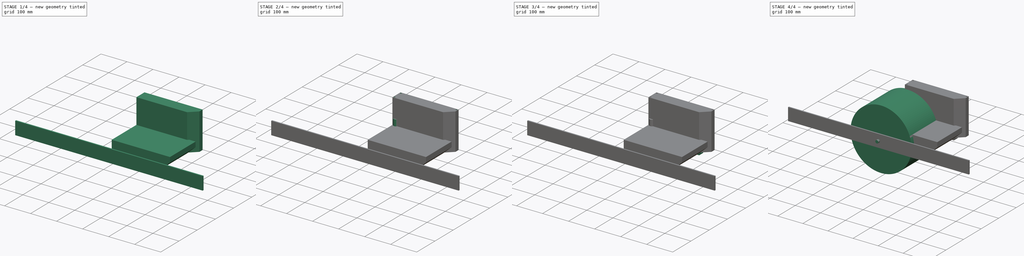
[diagram: build sequence overview — one tinted view per stage of 4, left to right]
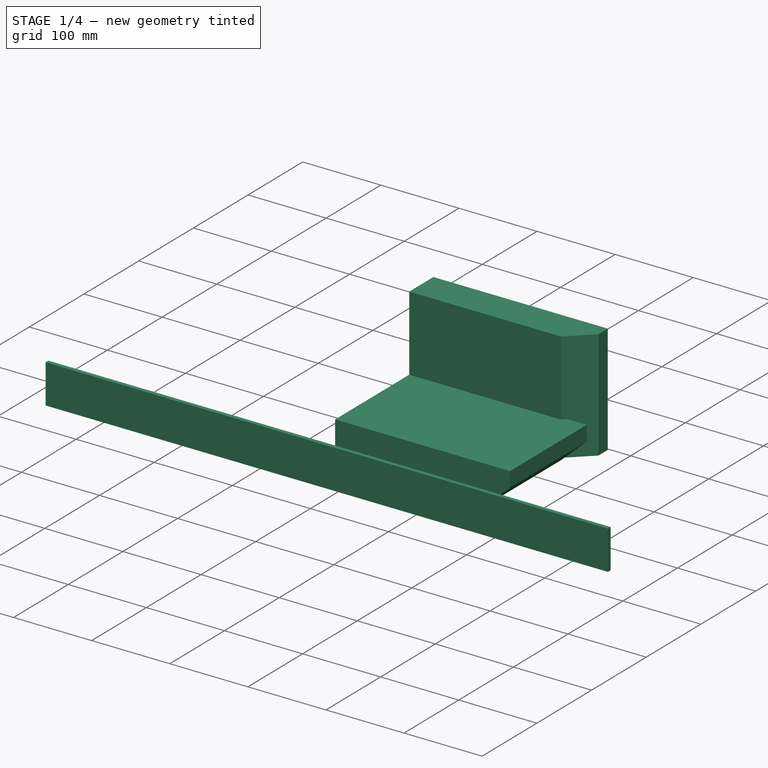
[diagram: stage 1 of 4 — iso view after this stage's code; geometry added in this stage tinted green]
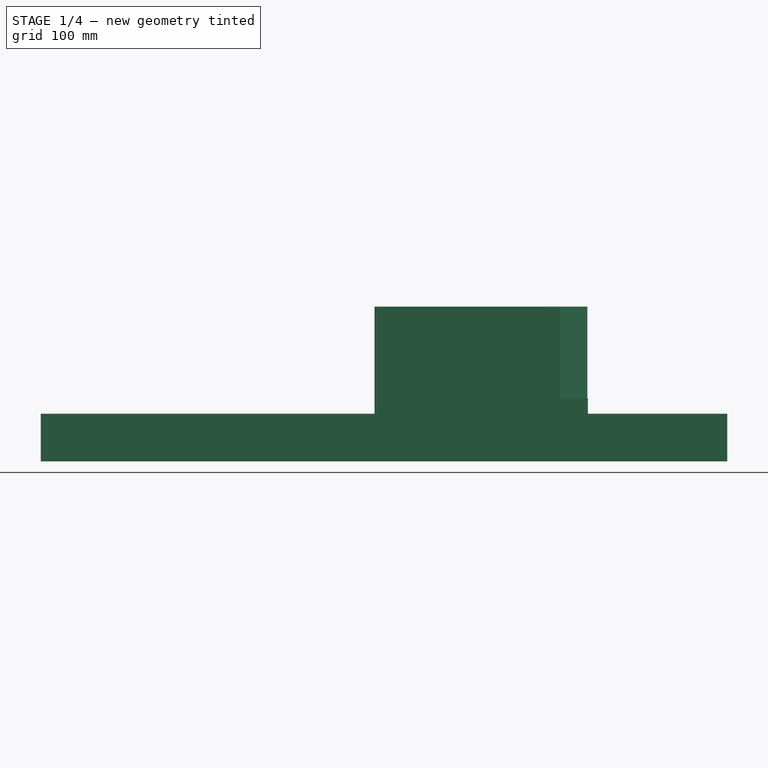
[diagram: stage 1 of 4 — front view after this stage's code; geometry added in this stage tinted green]
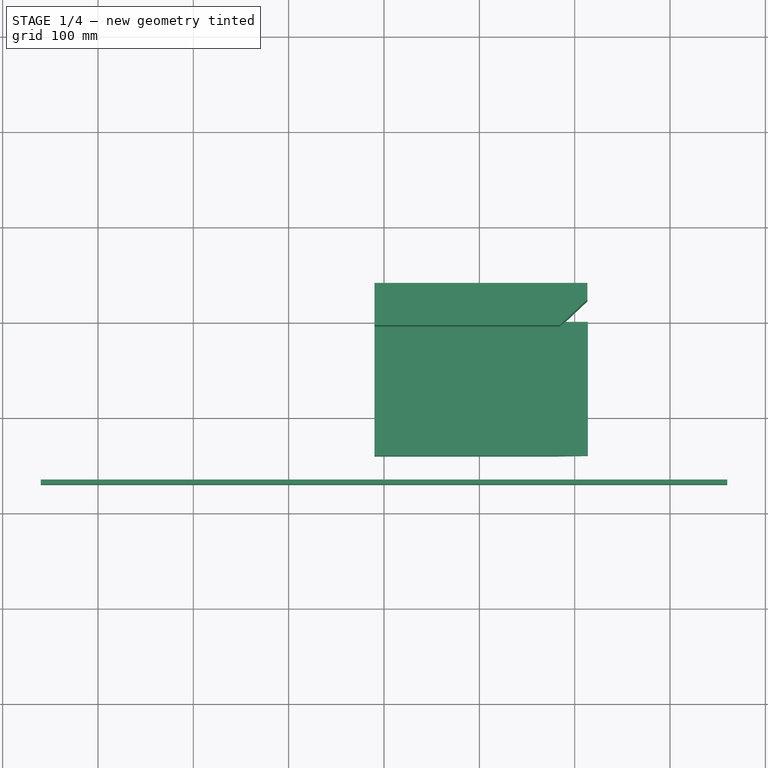
[diagram: stage 1 of 4 — top view after this stage's code; geometry added in this stage tinted green]
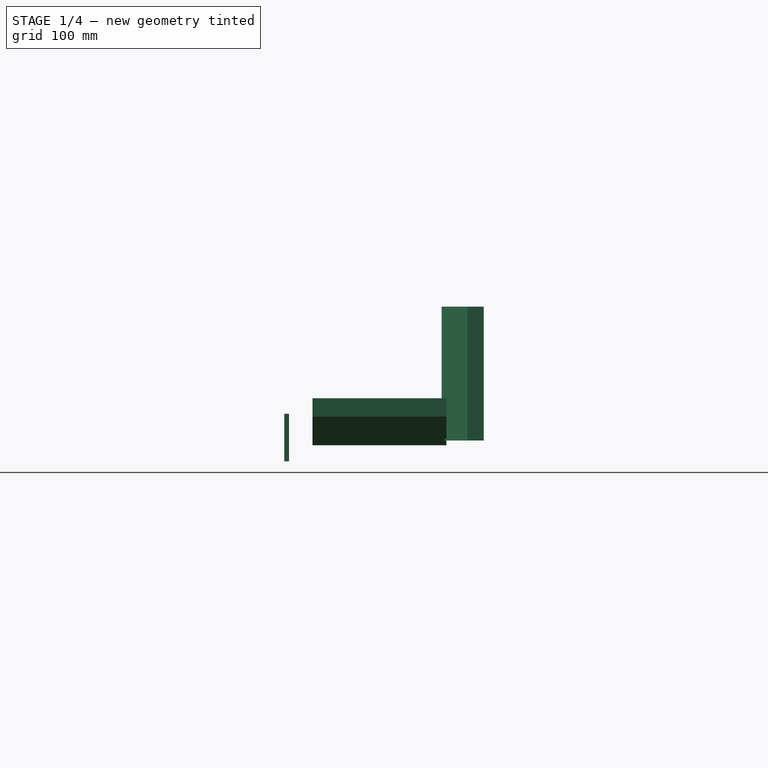
[diagram: stage 1 of 4 — right view after this stage's code; geometry added in this stage tinted green]
FCSTD DOCUMENT  (FreeCAD 0.17R13541 (Git))
Label: onewheel
License: All rights reserved
LicenseURL: http://en.wikipedia.org/wiki/All_rights_reserved
objects: Sketcher::SketchObject×20, PartDesign::Pad×9, PartDesign::Body×6, Spreadsheet::Sheet×4, Part::Feature×4, PartDesign::Plane×4, Part::FeaturePython×3, App::FeaturePython×3, PartDesign::Fillet×2, PartDesign::Pocket×2, PartDesign::FeatureBase×1
note: 62 computed .brp shape members not serialized (recipe doc carries the construction recipe); baked Part::Feature solids carry a one-line shape summary decoded from their .brp

FEATURE [PartDesign::Body] Body002  label="18650"
  Group = -> [Sketch005,Pad005,Fillet,Fillet001]
  Origin = -> Origin002
  Tip = -> Fillet001
FEATURE [App::FeaturePython] circularEdgeConstraint01  # a2plus constraint (typed FeaturePython)
  Object1 = Clone001
  Object2 = Clone
  SubElement1 = Edge7
  SubElement2 = Edge184
  Type = circularEdge
  directionConstraint = 0
  lockRotation = false
  offset = 0
FEATURE [App::FeaturePython] circularEdgeConstraint02  # a2plus constraint (typed FeaturePython)
  Object1 = mirror
  Object2 = Clone001
  SubElement1 = Edge184
  SubElement2 = Edge5
  Type = circularEdge
  directionConstraint = 0
  lockRotation = false
  offset = 0
FEATURE [Part::Feature] Shell
  shape: bbox 181.6 x 39.23 x 66.2 mm, 209 faces, 0 solids (baked)
FEATURE [Part::Feature] Clone006  label="Shell002"
  Placement = pos=(0,0,-68.2) rot=(0,0,1;0rad)
  shape: bbox 181.6 x 39.23 x 66.2 mm, 209 faces, 0 solids (baked)
  expr: Placement.Base.z = -66.200000000000003 - Spreadsheet003.HolderGap
FEATURE [Sketcher::SketchObject] Sketch006  label="Batteries"
  MapMode = 5
  Placement = pos=(0,0,0) rot=(1,0,0;1.5708rad)
  Support = -> [XZ_Plane003]
  expr: Constraints[10] = Spreadsheet003.HolderDepth
  expr: Constraints[22] = Spreadsheet003.HolderGap
  expr: Constraints[9] = Spreadsheet003.HolderLength
  sketch-geometry (8):
    g0: LineSegment StartX=0 StartY=66.2 StartZ=0 EndX=181.55 EndY=66.2 EndZ=0
    g1: LineSegment StartX=181.55 StartY=66.2 StartZ=0 EndX=181.55 EndY=0 EndZ=0
    g2: LineSegment StartX=181.55 StartY=0 StartZ=0 EndX=0 EndY=0 EndZ=0
    g3: LineSegment StartX=0 StartY=0 StartZ=0 EndX=0 EndY=66.2 EndZ=0
    g4: LineSegment StartX=0 StartY=134.4 StartZ=0 EndX=181.55 EndY=134.4 EndZ=0
    g5: LineSegment StartX=181.55 StartY=134.4 StartZ=0 EndX=181.55 EndY=68.2 EndZ=0
    g6: LineSegment StartX=181.55 StartY=68.2 StartZ=0 EndX=0 EndY=68.2 EndZ=0
    g7: LineSegment StartX=0 StartY=68.2 StartZ=0 EndX=0 EndY=134.4 EndZ=0
  constraints (23):
    c: Coincident(g0,g1)
    c: Coincident(g1,g2)
    c: Coincident(g2,g3)
    c: Coincident(g3,g0)
    c: Horizontal(g0)
    c: Horizontal(g2)
    c: Vertical(g1)
    c: Vertical(g3)
    c: Coincident(g2,g-1)
    c: Distance(g0) = 181.55
    c: Distance(g1) = 66.2
    c: Coincident(g4,g5)
    c: Coincident(g5,g6)
    c: Coincident(g6,g7)
    c: Coincident(g7,g4)
    c: Horizontal(g4)
    c: Horizontal(g6)
    c: Vertical(g5)
    c: Vertical(g7)
    c: PointOnObject(g4,g-2)
    c: Equal(g6,g0)
    c: Equal(g5,g1)
    c: DistanceY(g0,g5) = 2
FEATURE [Spreadsheet::Sheet] Spreadsheet003  label="Box"
  cells = A1=#HolderDepth; B1(HolderDepth)=66.200000000000003; A2=#HolderLength; B2(HolderLength)=181.55000000000001; A3=#HolderGap; B3(HolderGap)=2; A4=#HolderHeight; B4(HolderHeight)=40; C4=Dont use; A5=#PrimaryWallThickness; B5(PrimaryWallThickness)=5; C5=Not used; A6=#OuterWallThickness; B6(OuterWallThickness)=3; A7=#MountWallThickness; B7(MountWallThickness)=10; A8=#ScrewDiameter; B8(ScrewDiameter)=5; A9=#BottomThickness; B9(BottomThickness)=8; A10=#BmsExtra; B10(BmsExtra)=15; A11=#TopRoom; B11(TopRoom)=2; A12=#XHolderGap; B12(XHolderGap)=1
FEATURE [Sketcher::SketchObject] Sketch007
  MapMode = 5
  Support = -> [XY_Plane003]
  expr: Constraints[9] = Spreadsheet003.HolderHeight
  expr: Constraints[8] = Spreadsheet003.HolderLength
  sketch-geometry (4):
    g0: LineSegment StartX=0 StartY=40 StartZ=0 EndX=181.55 EndY=40 EndZ=0
    g1: LineSegment StartX=181.55 StartY=40 StartZ=0 EndX=181.55 EndY=0 EndZ=0
    g2: LineSegment StartX=181.55 StartY=0 StartZ=0 EndX=0 EndY=0 EndZ=0
    g3: LineSegment StartX=0 StartY=0 StartZ=0 EndX=0 EndY=40 EndZ=0
  constraints (11):
    c: Coincident(g0,g1)
    c: Coincident(g1,g2)
    c: Coincident(g2,g3)
    c: Coincident(g3,g0)
    c: Horizontal(g0)
    c: Horizontal(g2)
    c: Vertical(g1)
    c: Vertical(g3)
    c: Distance(g2) = 181.55
    c: Distance(g1) = 40
    c: Coincident(g2,g-1)
FEATURE [Sketcher::SketchObject] Sketch008
  MapMode = 5
  Support = -> [XY_Plane003]
FEATURE [Sketcher::SketchObject] Sketch009  label="HolderTemplate"
  sketch-geometry (49):
    g0: Circle CenterX=10.975 CenterY=10.975 CenterZ=0 NormalX=0 NormalY=0 NormalZ=1 AngleXU=0 Radius=9.375
    g1: Circle CenterX=20.95 CenterY=28.2522 CenterZ=0 NormalX=0 NormalY=0 NormalZ=1 AngleXU=0 Radius=9.375
    g2: Circle CenterX=30.925 CenterY=10.975 CenterZ=0 NormalX=0 NormalY=0 NormalZ=1 AngleXU=0 Radius=9.375
    g3: Circle CenterX=40.9 CenterY=28.2522 CenterZ=0 NormalX=0 NormalY=0 NormalZ=1 AngleXU=0 Radius=9.375
    g4: Circle CenterX=50.875 CenterY=10.975 CenterZ=0 NormalX=0 NormalY=0 NormalZ=1 AngleXU=0 Radius=9.375
    g5: Circle CenterX=60.85 CenterY=28.2522 CenterZ=0 NormalX=0 NormalY=0 NormalZ=1 AngleXU=0 Radius=9.375
    g6: Circle CenterX=70.825 CenterY=10.975 CenterZ=0 NormalX=0 NormalY=0 NormalZ=1 AngleXU=0 Radius=9.375
    g7: Circle CenterX=80.8 CenterY=28.2522 CenterZ=0 NormalX=0 NormalY=0 NormalZ=1 AngleXU=0 Radius=9.375
    g8: Circle CenterX=90.775 CenterY=10.975 CenterZ=0 NormalX=0 NormalY=0 NormalZ=1 AngleXU=0 Radius=9.375
    g9: Circle CenterX=100.75 CenterY=28.2522 CenterZ=0 NormalX=0 NormalY=0 NormalZ=1 AngleXU=0 Radius=9.375
    g10: Circle CenterX=110.725 CenterY=10.975 CenterZ=0 NormalX=0 NormalY=0 NormalZ=1 AngleXU=0 Radius=9.375
    g11: Circle CenterX=120.7 CenterY=28.2522 CenterZ=0 NormalX=0 NormalY=0 NormalZ=1 AngleXU=0 Radius=9.375
    g12: Circle CenterX=130.675 CenterY=10.975 CenterZ=0 NormalX=0 NormalY=0 NormalZ=1 AngleXU=0 Radius=9.375
    g13: Circle CenterX=150.625 CenterY=10.975 CenterZ=0 NormalX=0 NormalY=0 NormalZ=1 AngleXU=0 Radius=9.375
    g14: Circle CenterX=170.575 CenterY=10.975 CenterZ=0 NormalX=0 NormalY=0 NormalZ=1 AngleXU=0 Radius=9.375
    g15: LineSegment StartX=0 StartY=22.8232 StartZ=0 EndX=16.404 EndY=39.2272 EndZ=0
    g16: LineSegment StartX=16.404 StartY=39.2272 StartZ=0 EndX=26.925 EndY=39.2272 EndZ=0
    g17: ArcOfCircle CenterX=30.925 CenterY=39.2272 CenterZ=0 NormalX=0 NormalY=0 NormalZ=1 AngleXU=0 Radius=4 StartAngle=3.14159 EndAngle=6.28319
    g18: LineSegment StartX=34.925 StartY=39.2272 StartZ=0 EndX=46.875 EndY=39.2272 EndZ=0
    g19: ArcOfCircle CenterX=50.875 CenterY=39.2272 CenterZ=0 NormalX=0 NormalY=0 NormalZ=1 AngleXU=0 Radius=4 StartAngle=3.14159 EndAngle=6.28319
    g20: LineSegment StartX=54.875 StartY=39.2272 StartZ=0 EndX=66.825 EndY=39.2272 EndZ=0
    g21: ArcOfCircle CenterX=70.825 CenterY=39.2272 CenterZ=0 NormalX=0 NormalY=0 NormalZ=1 AngleXU=0 Radius=4 StartAngle=3.14159 EndAngle=6.28319
    g22: LineSegment StartX=74.825 StartY=39.2272 StartZ=0 EndX=86.775 EndY=39.2272 EndZ=0
    g23: ArcOfCircle CenterX=90.775 CenterY=39.2272 CenterZ=0 NormalX=0 NormalY=0 NormalZ=1 AngleXU=0 Radius=4 StartAngle=3.14159 EndAngle=6.28319
    g24: LineSegment StartX=94.775 StartY=39.2272 StartZ=0 EndX=106.725 EndY=39.2272 EndZ=0
    g25: ArcOfCircle CenterX=110.725 CenterY=39.2272 CenterZ=0 NormalX=0 NormalY=0 NormalZ=1 AngleXU=0 Radius=4 StartAngle=3.14159 EndAngle=6.28319
    g26: LineSegment StartX=114.725 StartY=39.2272 StartZ=0 EndX=131.675 EndY=39.2272 EndZ=0
    g27: LineSegment StartX=131.675 StartY=29.1065 StartZ=0 EndX=131.675 EndY=39.2272 EndZ=0
    g28: LineSegment StartX=131.675 StartY=29.1065 StartZ=0 EndX=138.831 EndY=21.95 EndZ=0
    g29: LineSegment StartX=181.55 StartY=21.95 StartZ=0 EndX=138.831 EndY=21.95 EndZ=0
    g30: LineSegment StartX=181.55 StartY=0 StartZ=0 EndX=181.55 EndY=21.95 EndZ=0
    g31: LineSegment StartX=164.6 StartY=0 StartZ=0 EndX=181.55 EndY=0 EndZ=0
    g32: ArcOfCircle CenterX=160.6 CenterY=0 CenterZ=0 NormalX=0 NormalY=0 NormalZ=1 AngleXU=0 Radius=4 StartAngle=0 EndAngle=3.14159
    g33: LineSegment StartX=156.6 StartY=0 StartZ=0 EndX=144.65 EndY=0 EndZ=0
    g34: ArcOfCircle CenterX=140.65 CenterY=0 CenterZ=0 NormalX=0 NormalY=0 NormalZ=1 AngleXU=0 Radius=4 StartAngle=0 EndAngle=3.14159
    g35: LineSegment StartX=136.65 StartY=-1e-12 StartZ=0 EndX=124.7 EndY=-1e-12 EndZ=0
    g36: ArcOfCircle CenterX=120.7 CenterY=0 CenterZ=0 NormalX=0 NormalY=0 NormalZ=1 AngleXU=0 Radius=4 StartAngle=0 EndAngle=3.14159
    g37: LineSegment StartX=116.7 StartY=-1e-12 StartZ=0 EndX=104.75 EndY=-1e-12 EndZ=0
    g38: ArcOfCircle CenterX=100.75 CenterY=0 CenterZ=0 NormalX=0 NormalY=0 NormalZ=1 AngleXU=0 Radius=4 StartAngle=0 EndAngle=3.14159
    g39: LineSegment StartX=96.75 StartY=-1e-12 StartZ=0 EndX=84.8 EndY=-1e-12 EndZ=0
    g40: ArcOfCircle CenterX=80.8 CenterY=0 CenterZ=0 NormalX=0 NormalY=0 NormalZ=1 AngleXU=0 Radius=4 StartAngle=0 EndAngle=3.14159
    g41: LineSegment StartX=76.8 StartY=-1e-12 StartZ=0 EndX=64.85 EndY=-1e-12 EndZ=0
    g42: ArcOfCircle CenterX=60.85 CenterY=0 CenterZ=0 NormalX=0 NormalY=0 NormalZ=1 AngleXU=0 Radius=4 StartAngle=0 EndAngle=3.14159
    g43: LineSegment StartX=56.85 StartY=0 StartZ=0 EndX=44.9 EndY=0 EndZ=0
    g44: ArcOfCircle CenterX=40.9 CenterY=0 CenterZ=0 NormalX=0 NormalY=0 NormalZ=1 AngleXU=0 Radius=4 StartAngle=0 EndAngle=3.14159
    g45: LineSegment StartX=36.9 StartY=0 StartZ=0 EndX=24.95 EndY=0 EndZ=0
    g46: ArcOfCircle CenterX=20.95 CenterY=0 CenterZ=0 NormalX=0 NormalY=0 NormalZ=1 AngleXU=0 Radius=4 StartAngle=0 EndAngle=3.14159
    g47: LineSegment StartX=16.95 StartY=-1e-12 StartZ=0 EndX=0 EndY=-1e-12 EndZ=0
    g48: LineSegment StartX=0 StartY=22.8232 StartZ=0 EndX=0 EndY=-1e-12 EndZ=0
  constraints (48):
    c: Coincident(g15,g16)
    c: Coincident(g16,g17)
    c: Coincident(g17,g18)
    c: Coincident(g18,g19)
    c: Coincident(g19,g20)
    c: Coincident(g20,g21)
    c: Coincident(g21,g22)
    c: Coincident(g22,g23)
    c: Coincident(g23,g24)
    c: Coincident(g24,g25)
    c: Coincident(g25,g26)
    c: Horizontal(g26)
    c: Coincident(g26,g27)
    c: Vertical(g27)
    c: Coincident(g27,g28)
    c: Coincident(g28,g29)
    c: Horizontal(g29)
    c: Coincident(g29,g30)
    c: Vertical(g30)
    c: Coincident(g30,g31)
    c: Horizontal(g31)
    c: Coincident(g31,g32)
    c: Coincident(g32,g33)
    c: Horizontal(g33)
    c: Coincident(g33,g34)
    c: Coincident(g34,g35)
    c: Horizontal(g35)
    c: Coincident(g35,g36)
    c: Coincident(g36,g37)
    c: Horizontal(g37)
    c: Coincident(g37,g38)
    c: Coincident(g38,g39)
    c: Horizontal(g39)
    c: Coincident(g39,g40)
    c: Coincident(g40,g41)
    c: Horizontal(g41)
    c: Coincident(g41,g42)
    c: Coincident(g42,g43)
    c: Horizontal(g43)
    c: Coincident(g43,g44)
    c: Coincident(g44,g45)
    c: Horizontal(g45)
    c: Coincident(g45,g46)
    c: Coincident(g46,g47)
    c: Horizontal(g47)
    c: Coincident(g47,g48)
    c: Vertical(g48)
    c: Coincident(g48,g15)
FEATURE [Sketcher::SketchObject] Sketch010
  ExternalGeometry = -> [Sketch009]
  MapMode = 5
  Support = -> [XY_Plane003]
  expr: Constraints[10] = Box.MountWallThickness
  expr: Constraints[9] = Spreadsheet003.PrimaryWallThickness
  sketch-geometry (6):
    g0: LineSegment StartX=-10 StartY=39.2272 StartZ=0 EndX=213.295 EndY=39.2272 EndZ=0
    g1: LineSegment StartX=213.295 StartY=39.2272 StartZ=0 EndX=213.295 EndY=22.1437 EndZ=0
    g2: LineSegment StartX=213.295 StartY=22.1437 StartZ=0 EndX=184.437 EndY=-5 EndZ=0
    g3: LineSegment StartX=184.437 StartY=-5 StartZ=0 EndX=-10 EndY=-5 EndZ=0
    g4: LineSegment StartX=-10 StartY=-5 StartZ=0 EndX=-10 EndY=39.2272 EndZ=0
    g5: LineSegment [constr] StartX=181.55 StartY=0 StartZ=0 EndX=184.437 EndY=-5 EndZ=0
  constraints (15):
    c: Horizontal(g0)
    c: Coincident(g0,g1)
    c: Vertical(g1)
    c: Coincident(g1,g2)
    c: Coincident(g2,g3)
    c: Horizontal(g3)
    c: Coincident(g3,g4)
    c: Coincident(g4,g0)
    c: Vertical(g4)
    c: Distance(g-4,g3) = 5
    c: Distance(g-1,g4) = 10
    c: PointOnObject(g-3,g0)
    c: Coincident(g5,g-4)
    c: Coincident(g5,g2)
    c: Angle(g5) = -1.0472
FEATURE [PartDesign::Pad] Pad006
  Length = 137.4
  Length2 = 3
  Profile = -> Sketch010
  Reversed = true
  Type = 4
  expr: Length2 = Box.OuterWallThickness
  expr: Length = 2 * Box.HolderDepth + Box.HolderGap + Box.OuterWallThickness
FEATURE [PartDesign::Body] Body003  label="OuterBoxTest"
  Group = -> [Sketch006,Sketch007,Sketch008,Sketch009,Sketch010,Pad006,Sketch011,Pocket,Sketch012,Pocket001]
  Origin = -> Origin003
  Tip = -> Pocket001
FEATURE [Spreadsheet::Sheet] Spreadsheet004  label="Profiles"
  cells = A1=#WheelGap; B1(WheelGap)=10; A2=#ProfileThickness; B2(ProfileThickness)=5
FEATURE [PartDesign::Plane] DatumPlane
  AttachmentOffset = pos=(0,0,-10) rot=(0,0,1;0rad)
  MapMode = 5
  Placement = pos=(0,10,1e-12) rot=(1,0,0;1.5708rad)
  Support = -> [XZ_Plane004]
  expr: AttachmentOffset.Base.z = -Profiles.B1
FEATURE [Sketcher::SketchObject] Sketch013
  MapMode = 5
  Placement = pos=(0,10,1e-12) rot=(1,0,0;1.5708rad)
  Support = -> [DatumPlane]
  sketch-geometry (4):
    g0: LineSegment StartX=-360 StartY=25 StartZ=0 EndX=360 EndY=25 EndZ=0
    g1: LineSegment StartX=360 StartY=25 StartZ=0 EndX=360 EndY=-25 EndZ=0
    g2: LineSegment StartX=360 StartY=-25 StartZ=0 EndX=-360 EndY=-25 EndZ=0
    g3: LineSegment StartX=-360 StartY=-25 StartZ=0 EndX=-360 EndY=25 EndZ=0
  constraints (11):
    c: Coincident(g0,g1)
    c: Coincident(g1,g2)
    c: Coincident(g2,g3)
    c: Coincident(g3,g0)
    c: Horizontal(g0)
    c: Horizontal(g2)
    c: Vertical(g1)
    c: Vertical(g3)
    c: Symmetric(g0,g1,g-1)
    c: Distance(g1) = 50
    c: Distance(g0) = 720
FEATURE [PartDesign::Pad] Pad007
  Length = 5
  Length2 = 100
  Placement = pos=(0,10,0) rot=(1,0,0;1.5708rad)
  Profile = -> Sketch013
  Reversed = true
  Type = 0
  expr: Length = Profiles.B2
FEATURE [PartDesign::Body] Body004  label="Profile"
  Group = -> [Sketch013,DatumPlane,Pad007]
  Origin = -> Origin004
  Tip = -> Pad007
FEATURE [PartDesign::FeatureBase] Clone
  BaseFeature = -> Body004
  Placement = pos=(0,-180,0) rot=(0,0,1;0rad)
  expr: Placement.Base.y = -Pyörä.B2 - 2 * Profiles.B1 - Profiles.B2
FEATURE [App::FeaturePython] planeConstraint01  # a2plus constraint (typed FeaturePython)
  Object1 = Pocket001
  Object2 = Pad007
  SubElement1 = Face3
  SubElement2 = Face5
  Type = plane
  directionConstraint = 0
  offset = 0
FEATURE [Part::Feature] Clone009  label="OuterBoxTest003"
  Placement = pos=(146.705,-10.3,-14.2272) rot=(1,0,0;1.5708rad)
  shape: bbox 223.3 x 140.4 x 44.23 mm, 21 faces (baked)
  expr: Placement.Base.y = 7 - 34.600000000000001 / 2
FEATURE [Part::Feature] Shell001  label="Shell003"
  Placement = pos=(158.25,-12.491,-3.252) rot=(1,0,0;1.5708rad)
  shape: bbox 181.6 x 66.2 x 39.23 mm, 209 faces, 0 solids (baked)
FEATURE [Sketcher::SketchObject] Sketch015  label="HolderTemplate001"
  MapMode = 5
  Placement = pos=(0,0,0) rot=(1,0,0;1.5708rad)
  Support = -> [XZ_Plane005]
  sketch-geometry (49):
    g0: Circle CenterX=10.975 CenterY=10.975 CenterZ=0 NormalX=0 NormalY=0 NormalZ=1 AngleXU=0 Radius=9.375
    g1: Circle CenterX=20.95 CenterY=28.2522 CenterZ=0 NormalX=0 NormalY=0 NormalZ=1 AngleXU=0 Radius=9.375
    g2: Circle CenterX=30.925 CenterY=10.975 CenterZ=0 NormalX=0 NormalY=0 NormalZ=1 AngleXU=0 Radius=9.375
    g3: Circle CenterX=40.9 CenterY=28.2522 CenterZ=0 NormalX=0 NormalY=0 NormalZ=1 AngleXU=0 Radius=9.375
    g4: Circle CenterX=50.875 CenterY=10.975 CenterZ=0 NormalX=0 NormalY=0 NormalZ=1 AngleXU=0 Radius=9.375
    g5: Circle CenterX=60.85 CenterY=28.2522 CenterZ=0 NormalX=0 NormalY=0 NormalZ=1 AngleXU=0 Radius=9.375
    g6: Circle CenterX=70.825 CenterY=10.975 CenterZ=0 NormalX=0 NormalY=0 NormalZ=1 AngleXU=0 Radius=9.375
    g7: Circle CenterX=80.8 CenterY=28.2522 CenterZ=0 NormalX=0 NormalY=0 NormalZ=1 AngleXU=0 Radius=9.375
    g8: Circle CenterX=90.775 CenterY=10.975 CenterZ=0 NormalX=0 NormalY=0 NormalZ=1 AngleXU=0 Radius=9.375
    g9: Circle CenterX=100.75 CenterY=28.2522 CenterZ=0 NormalX=0 NormalY=0 NormalZ=1 AngleXU=0 Radius=9.375
    g10: Circle CenterX=110.725 CenterY=10.975 CenterZ=0 NormalX=0 NormalY=0 NormalZ=1 AngleXU=0 Radius=9.375
    g11: Circle CenterX=120.7 CenterY=28.2522 CenterZ=0 NormalX=0 NormalY=0 NormalZ=1 AngleXU=0 Radius=9.375
    g12: Circle CenterX=130.675 CenterY=10.975 CenterZ=0 NormalX=0 NormalY=0 NormalZ=1 AngleXU=0 Radius=9.375
    g13: Circle CenterX=150.625 CenterY=10.975 CenterZ=0 NormalX=0 NormalY=0 NormalZ=1 AngleXU=0 Radius=9.375
    g14: Circle CenterX=170.575 CenterY=10.975 CenterZ=0 NormalX=0 NormalY=0 NormalZ=1 AngleXU=0 Radius=9.375
    g15: LineSegment StartX=0 StartY=22.8232 StartZ=0 EndX=16.404 EndY=39.2272 EndZ=0
    g16: LineSegment StartX=16.404 StartY=39.2272 StartZ=0 EndX=26.925 EndY=39.2272 EndZ=0
    g17: ArcOfCircle CenterX=30.925 CenterY=39.2272 CenterZ=0 NormalX=0 NormalY=0 NormalZ=1 AngleXU=0 Radius=4 StartAngle=3.14159 EndAngle=6.28319
    g18: LineSegment StartX=34.925 StartY=39.2272 StartZ=0 EndX=46.875 EndY=39.2272 EndZ=0
    g19: ArcOfCircle CenterX=50.875 CenterY=39.2272 CenterZ=0 NormalX=0 NormalY=0 NormalZ=1 AngleXU=0 Radius=4 StartAngle=3.14159 EndAngle=6.28319
    g20: LineSegment StartX=54.875 StartY=39.2272 StartZ=0 EndX=66.825 EndY=39.2272 EndZ=0
    g21: ArcOfCircle CenterX=70.825 CenterY=39.2272 CenterZ=0 NormalX=0 NormalY=0 NormalZ=1 AngleXU=0 Radius=4 StartAngle=3.14159 EndAngle=6.28319
    g22: LineSegment StartX=74.825 StartY=39.2272 StartZ=0 EndX=86.775 EndY=39.2272 EndZ=0
    g23: ArcOfCircle CenterX=90.775 CenterY=39.2272 CenterZ=0 NormalX=0 NormalY=0 NormalZ=1 AngleXU=0 Radius=4 StartAngle=3.14159 EndAngle=6.28319
    g24: LineSegment StartX=94.775 StartY=39.2272 StartZ=0 EndX=106.725 EndY=39.2272 EndZ=0
    g25: ArcOfCircle CenterX=110.725 CenterY=39.2272 CenterZ=0 NormalX=0 NormalY=0 NormalZ=1 AngleXU=0 Radius=4 StartAngle=3.14159 EndAngle=6.28319
    g26: LineSegment StartX=114.725 StartY=39.2272 StartZ=0 EndX=131.675 EndY=39.2272 EndZ=0
    g27: LineSegment StartX=131.675 StartY=29.1065 StartZ=0 EndX=131.675 EndY=39.2272 EndZ=0
    g28: LineSegment StartX=131.675 StartY=29.1065 StartZ=0 EndX=138.831 EndY=21.95 EndZ=0
    g29: LineSegment StartX=181.55 StartY=21.95 StartZ=0 EndX=138.831 EndY=21.95 EndZ=0
    g30: LineSegment StartX=181.55 StartY=0 StartZ=0 EndX=181.55 EndY=21.95 EndZ=0
    g31: LineSegment StartX=164.6 StartY=0 StartZ=0 EndX=181.55 EndY=0 EndZ=0
    g32: ArcOfCircle CenterX=160.6 CenterY=0 CenterZ=0 NormalX=0 NormalY=0 NormalZ=1 AngleXU=0 Radius=4 StartAngle=0 EndAngle=3.14159
    g33: LineSegment StartX=156.6 StartY=-1e-12 StartZ=0 EndX=144.65 EndY=-1e-12 EndZ=0
    g34: ArcOfCircle CenterX=140.65 CenterY=0 CenterZ=0 NormalX=0 NormalY=0 NormalZ=1 AngleXU=0 Radius=4 StartAngle=0 EndAngle=3.14159
    g35: LineSegment StartX=136.65 StartY=0 StartZ=0 EndX=124.7 EndY=0 EndZ=0
    g36: ArcOfCircle CenterX=120.7 CenterY=0 CenterZ=0 NormalX=0 NormalY=0 NormalZ=1 AngleXU=0 Radius=4 StartAngle=0 EndAngle=3.14159
    g37: LineSegment StartX=116.7 StartY=0 StartZ=0 EndX=104.75 EndY=0 EndZ=0
    g38: ArcOfCircle CenterX=100.75 CenterY=0 CenterZ=0 NormalX=0 NormalY=0 NormalZ=1 AngleXU=0 Radius=4 StartAngle=0 EndAngle=3.14159
    g39: LineSegment StartX=96.75 StartY=-1e-12 StartZ=0 EndX=84.8 EndY=-1e-12 EndZ=0
    g40: ArcOfCircle CenterX=80.8 CenterY=0 CenterZ=0 NormalX=0 NormalY=0 NormalZ=1 AngleXU=0 Radius=4 StartAngle=0 EndAngle=3.14159
    g41: LineSegment StartX=76.8 StartY=0 StartZ=0 EndX=64.85 EndY=0 EndZ=0
    g42: ArcOfCircle CenterX=60.85 CenterY=0 CenterZ=0 NormalX=0 NormalY=0 NormalZ=1 AngleXU=0 Radius=4 StartAngle=0 EndAngle=3.14159
    g43: LineSegment StartX=56.85 StartY=0 StartZ=0 EndX=44.9 EndY=0 EndZ=0
    g44: ArcOfCircle CenterX=40.9 CenterY=0 CenterZ=0 NormalX=0 NormalY=0 NormalZ=1 AngleXU=0 Radius=4 StartAngle=0 EndAngle=3.14159
    g45: LineSegment StartX=36.9 StartY=-1e-12 StartZ=0 EndX=24.95 EndY=-1e-12 EndZ=0
    g46: ArcOfCircle CenterX=20.95 CenterY=0 CenterZ=0 NormalX=0 NormalY=0 NormalZ=1 AngleXU=0 Radius=4 StartAngle=0 EndAngle=3.14159
    g47: LineSegment StartX=16.95 StartY=-1e-12 StartZ=0 EndX=0 EndY=-1e-12 EndZ=0
    g48: LineSegment StartX=0 StartY=22.8232 StartZ=0 EndX=0 EndY=-1e-12 EndZ=0
  constraints (48):
    c: Coincident(g15,g16)
    c: Coincident(g16,g17)
    c: Coincident(g17,g18)
    c: Coincident(g18,g19)
    c: Coincident(g19,g20)
    c: Coincident(g20,g21)
    c: Coincident(g21,g22)
    c: Coincident(g22,g23)
    c: Coincident(g23,g24)
    c: Coincident(g24,g25)
    c: Coincident(g25,g26)
    c: Horizontal(g26)
    c: Coincident(g26,g27)
    c: Vertical(g27)
    c: Coincident(g27,g28)
    c: Coincident(g28,g29)
    c: Horizontal(g29)
    c: Coincident(g29,g30)
    c: Vertical(g30)
    c: Coincident(g30,g31)
    c: Horizontal(g31)
    c: Coincident(g31,g32)
    c: Coincident(g32,g33)
    c: Horizontal(g33)
    c: Coincident(g33,g34)
    c: Coincident(g34,g35)
    c: Horizontal(g35)
    c: Coincident(g35,g36)
    c: Coincident(g36,g37)
    c: Horizontal(g37)
    c: Coincident(g37,g38)
    c: Coincident(g38,g39)
    c: Horizontal(g39)
    c: Coincident(g39,g40)
    c: Coincident(g40,g41)
    c: Horizontal(g41)
    c: Coincident(g41,g42)
    c: Coincident(g42,g43)
    c: Horizontal(g43)
    c: Coincident(g43,g44)
    c: Coincident(g44,g45)
    c: Horizontal(g45)
    c: Coincident(g45,g46)
    c: Coincident(g46,g47)
    c: Horizontal(g47)
    c: Coincident(g47,g48)
    c: Vertical(g48)
    c: Coincident(g48,g15)
FEATURE [Sketcher::SketchObject] Sketch014
  ExternalGeometry = -> [Sketch015]
  MapMode = 5
  Placement = pos=(0,0,0) rot=(1,0,0;1.5708rad)
  Support = -> [XZ_Plane005]
  expr: Constraints[25] = Akku.B2 / 2 + Akku.B3
  expr: Constraints[21] = Akku.B2 / 2 + Akku.B3
  expr: Constraints[23] = Akku.B2 / 2 + Akku.B3
  expr: Constraints[22] = Akku.B2 / 2 + Akku.B3
  expr: Constraints[27] = Akku.B2 / 2 + Akku.B3
  expr: Constraints[26] = Akku.B2 / 2 + Akku.B3
  expr: Constraints[24] = Akku.B2 / 2 + Akku.B3
  expr: Constraints[20] = Akku.B2 / 2 + Akku.B3
  expr: Constraints[0] = Akku.B2 / 2
  sketch-geometry (12):
    g0: Circle CenterX=10.975 CenterY=10.975 CenterZ=0 NormalX=0 NormalY=0 NormalZ=1 AngleXU=0 Radius=9.375
    g1: LineSegment StartX=0 StartY=0 StartZ=0 EndX=181.55 EndY=0 EndZ=0
    g2: LineSegment StartX=181.55 StartY=0 StartZ=0 EndX=181.55 EndY=21.95 EndZ=0
    g3: LineSegment StartX=181.55 StartY=21.95 StartZ=0 EndX=138.831 EndY=21.95 EndZ=0
    g4: LineSegment StartX=138.831 StartY=21.95 StartZ=0 EndX=131.675 EndY=29.1065 EndZ=0
    g5: LineSegment StartX=131.675 StartY=29.1065 StartZ=0 EndX=131.675 EndY=39.2272 EndZ=0
    g6: LineSegment StartX=131.675 StartY=39.2272 StartZ=0 EndX=16.404 EndY=39.2272 EndZ=0
    g7: LineSegment StartX=16.404 StartY=39.2272 StartZ=0 EndX=0 EndY=22.8232 EndZ=0
    g8: LineSegment StartX=0 StartY=22.8232 StartZ=0 EndX=0 EndY=0 EndZ=0
    g9: Circle CenterX=20.95 CenterY=28.2522 CenterZ=0 NormalX=0 NormalY=0 NormalZ=1 AngleXU=0 Radius=9.375
    g10: Circle CenterX=120.7 CenterY=28.2522 CenterZ=0 NormalX=0 NormalY=0 NormalZ=1 AngleXU=0 Radius=9.375
    g11: Circle CenterX=170.575 CenterY=10.975 CenterZ=0 NormalX=0 NormalY=0 NormalZ=1 AngleXU=0 Radius=9.375
  constraints (28):
    c: Radius(g0) = 9.375
    c: Coincident(g-1,g1)
    c: Coincident(g1,g2)
    c: Coincident(g2,g3)
    c: Coincident(g3,g4)
    c: Coincident(g4,g5)
    c: Coincident(g5,g6)
    c: Coincident(g6,g7)
    c: Coincident(g7,g8)
    c: Coincident(g8,g1)
    c: Coincident(g7,g-4)
    c: Coincident(g6,g-4)
    c: Coincident(g5,g-5)
    c: Coincident(g4,g-6)
    c: Coincident(g3,g-7)
    c: Coincident(g2,g-8)
    c: Coincident(g-8,g1)
    c: Equal(g0,g9) = 9.375
    c: Equal(g9,g10)
    c: Equal(g10,g11)
    c: Distance(g0,g8) = 10.975
    c: Distance(g0,g1) = 10.975
    c: Distance(g11,g2) = 10.975
    c: Distance(g11,g1) = 10.975
    c: Distance(g10,g6) = 10.975
    c: Distance(g10,g5) = 10.975
    c: Distance(g9,g6) = 10.975
    c: Distance(g9,g7) = 10.975
FEATURE [Sketcher::SketchObject] Sketch016
  ExternalGeometry = -> [Sketch014]
  MapMode = 5
  Placement = pos=(0,0,0) rot=(1,0,0;1.5708rad)
  Support = -> [XZ_Plane005]
  expr: Constraints[21] = Box.BottomThickness
  expr: Constraints[20] = Box.MountWallThickness + Box.BmsExtra
  expr: Constraints[18] = Akku.BmsLength
  expr: Constraints[22] = Box.TopRoom
  expr: Constraints[17] = Box.MountWallThickness
  sketch-geometry (8):
    g0: LineSegment StartX=-10 StartY=41.2272 StartZ=0 EndX=213.831 EndY=41.2272 EndZ=0
    g1: LineSegment StartX=213.831 StartY=41.2272 StartZ=0 EndX=213.831 EndY=-8 EndZ=0
    g2: LineSegment StartX=213.831 StartY=-8 StartZ=0 EndX=-10 EndY=-8 EndZ=0
    g3: LineSegment StartX=-10 StartY=-8 StartZ=0 EndX=-10 EndY=41.2272 EndZ=0
    g4: LineSegment StartX=138.831 StartY=21.95 StartZ=0 EndX=188.831 EndY=21.95 EndZ=0
    g5: LineSegment StartX=188.831 StartY=21.95 StartZ=0 EndX=188.831 EndY=27.95 EndZ=0
    g6: LineSegment StartX=188.831 StartY=27.95 StartZ=0 EndX=138.831 EndY=27.95 EndZ=0
    g7: LineSegment StartX=138.831 StartY=27.95 StartZ=0 EndX=138.831 EndY=21.95 EndZ=0
  constraints (23):
    c: Coincident(g0,g1)
    c: Coincident(g1,g2)
    c: Coincident(g2,g3)
    c: Coincident(g3,g0)
    c: Horizontal(g0)
    c: Horizontal(g2)
    c: Vertical(g1)
    c: Vertical(g3)
    c: Coincident(g4,g5)
    c: Coincident(g5,g6)
    c: Coincident(g6,g7)
    c: Coincident(g7,g4)
    c: Horizontal(g4)
    c: Horizontal(g6)
    c: Vertical(g5)
    c: Vertical(g7)
    c: Coincident(g4,g-7)
    c: Distance(g-3,g3) = 10
    c: Distance(g6) = 50
    c: Distance(g7) = 6
    c: Distance(g5,g1) = 25
    c: Distance(g-1,g2) = 8
    c: Distance(g-5,g0) = 2
FEATURE [Sketcher::SketchObject] Sketch017
  ExternalGeometry = -> [Sketch016,Sketch014]
  MapMode = 5
  Placement = pos=(0,0,0) rot=(1,0,0;1.5708rad)
  Support = -> [XZ_Plane005]
  sketch-geometry (5):
    g0: LineSegment StartX=-10 StartY=41.2272 StartZ=0 EndX=213.831 EndY=41.2272 EndZ=0
    g1: LineSegment StartX=213.831 StartY=41.2272 StartZ=0 EndX=213.831 EndY=21.95 EndZ=0
    g2: LineSegment StartX=181.55 StartY=-8 StartZ=0 EndX=-10 EndY=-8 EndZ=0
    g3: LineSegment StartX=-10 StartY=-8 StartZ=0 EndX=-10 EndY=41.2272 EndZ=0
    g4: LineSegment StartX=181.55 StartY=-8 StartZ=0 EndX=213.831 EndY=21.95 EndZ=0
  constraints (12):
    c: Coincident(g0,g1)
    c: Coincident(g2,g3)
    c: Coincident(g3,g0)
    c: Coincident(g0,g-6)
    c: Coincident(g1,g4)
    c: Coincident(g2,g4)
    c: PointOnObject(g2,g-5)
    c: PointOnObject(g1,g-7)
    c: Coincident(g2,g-5)
    c: Coincident(g0,g-7)
    c: PointOnObject(g1,g-9)
    c: PointOnObject(g2,g-8)
FEATURE [PartDesign::Pad] Pad008
  Length = 140.4
  Length2 = 100
  Placement = pos=(0,0,0) rot=(1,0,0;1.5708rad)
  Profile = -> Sketch017
  Type = 0
  expr: Length = 2 * Box.OuterWallThickness + 2 * Box.HolderDepth + Box.HolderGap
FEATURE [PartDesign::Plane] DatumPlane001
  MapMode = 5
  Placement = pos=(0,0,41.2272) rot=(0,0,1;3.14159rad)
  Support = -> [Pad008]
FEATURE [Sketcher::SketchObject] Sketch018
  ExternalGeometry = -> [Sketch016]
  MapMode = 5
  Placement = pos=(0,0,41.2272) rot=(0,0,1;3.14159rad)
  Support = -> [DatumPlane001]
  expr: Constraints[11] = Box.OuterWallThickness
  expr: Constraints[9] = 2 * Box.HolderDepth + Box.HolderGap
  expr: Constraints[8] = Box.MountWallThickness
  sketch-geometry (4):
    g0: LineSegment StartX=0 StartY=3 StartZ=0 EndX=-203.831 EndY=3 EndZ=0
    g1: LineSegment StartX=-203.831 StartY=3 StartZ=0 EndX=-203.831 EndY=137.4 EndZ=0
    g2: LineSegment StartX=-203.831 StartY=137.4 StartZ=0 EndX=0 EndY=137.4 EndZ=0
    g3: LineSegment StartX=0 StartY=137.4 StartZ=0 EndX=0 EndY=3 EndZ=0
  constraints (12):
    c: Coincident(g0,g1)
    c: Coincident(g1,g2)
    c: Coincident(g2,g3)
    c: Coincident(g3,g0)
    c: Horizontal(g0)
    c: Horizontal(g2)
    c: Vertical(g1)
    c: Vertical(g3)
    c: DistanceX(g-3,g0) = 10
    c: Distance(g3) = 134.4
    c: PointOnObject(g0,g-2)
    c: DistanceY(g-1,g0) = 3
FEATURE [PartDesign::Plane] DatumPlane003
  AttachmentOffset = pos=(0,0,3) rot=(0,0,1;0rad)
  MapMode = 5
  Placement = pos=(0,-3,0) rot=(1,0,0;1.5708rad)
  Support = -> [XZ_Plane005]
  expr: AttachmentOffset.Base.z = Box.OuterWallThickness
FEATURE [PartDesign::Plane] DatumPlane004
  AttachmentOffset = pos=(0,0,137.4) rot=(0,0,1;0rad)
  MapMode = 5
  Placement = pos=(0,-137.4,-1.4e-11) rot=(1,0,0;1.5708rad)
  Support = -> [XZ_Plane005]
  expr: AttachmentOffset.Base.z = Box.OuterWallThickness + 2 * Box.HolderDepth + Box.HolderGap
FEATURE [Sketcher::SketchObject] Sketch019
  ExternalGeometry = -> [Sketch014,Sketch016,Sketch017]
  MapMode = 5
  Placement = pos=(0,-3,0) rot=(1,0,0;1.5708rad)
  Support = -> [DatumPlane003]
  expr: Constraints[11] = Box.XHolderGap
  expr: Constraints[10] = Box.MountWallThickness
  sketch-geometry (6):
    g0: LineSegment StartX=0 StartY=41.2272 StartZ=0 EndX=0 EndY=0 EndZ=0
    g1: LineSegment StartX=0 StartY=0 StartZ=0 EndX=182.55 EndY=0 EndZ=0
    g2: LineSegment StartX=203.831 StartY=21.95 StartZ=0 EndX=203.831 EndY=41.2272 EndZ=0
    g3: LineSegment StartX=203.831 StartY=41.2272 StartZ=0 EndX=0 EndY=41.2272 EndZ=0
    g4: LineSegment StartX=182.55 StartY=0 StartZ=0 EndX=182.55 EndY=21.95 EndZ=0
    g5: LineSegment StartX=182.55 StartY=21.95 StartZ=0 EndX=203.831 EndY=21.95 EndZ=0
  constraints (17):
    c: Coincident(g0,g1)
    c: Coincident(g2,g3)
    c: Coincident(g0,g3)
    c: Coincident(g4,g5)
    c: Vertical(g4)
    c: Horizontal(g5)
    c: PointOnObject(g1,g-1)
    c: Coincident(g4,g1)
    c: Vertical(g2)
    c: PointOnObject(g2,g-9)
    c: Distance(g2,g-8) = 10
    c: Distance(g1,g-4) = 1
    c: Coincident(g0,g-1)
    c: PointOnObject(g0,g-2)
    c: PointOnObject(g0,g-9)
    c: PointOnObject(g-5,g5)
    c: Coincident(g5,g2)
FEATURE [PartDesign::Body] Body005  label="BatteryBox"
  Group = -> [Sketch014,Sketch015,Sketch016,Sketch017,Pad008,DatumPlane001,Sketch018,DatumPlane003,DatumPlane004,Sketch019]
  Origin = -> Origin005
  Tip = -> Pad008
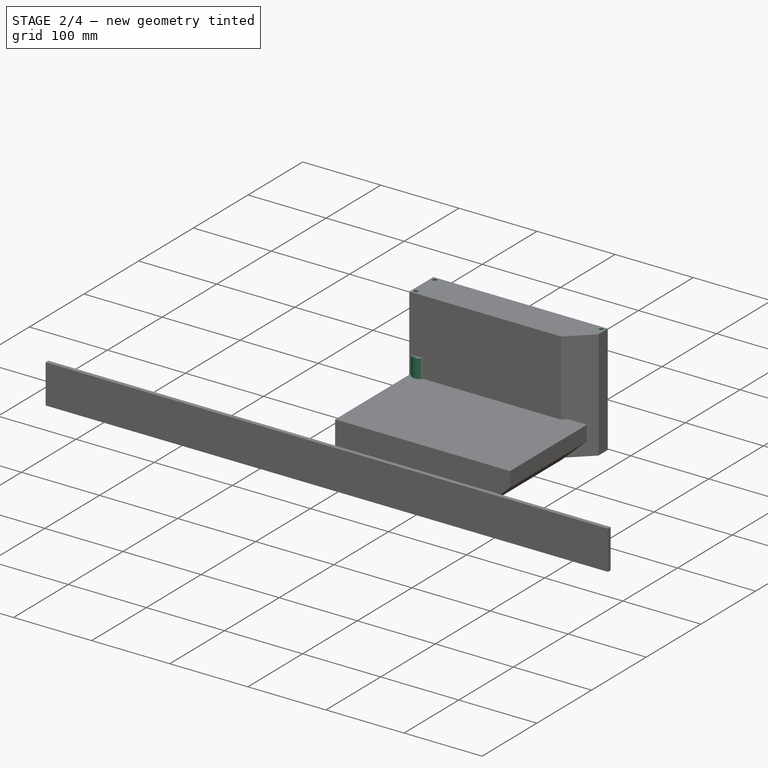
[diagram: stage 2 of 4 — iso view after this stage's code; geometry added in this stage tinted green]
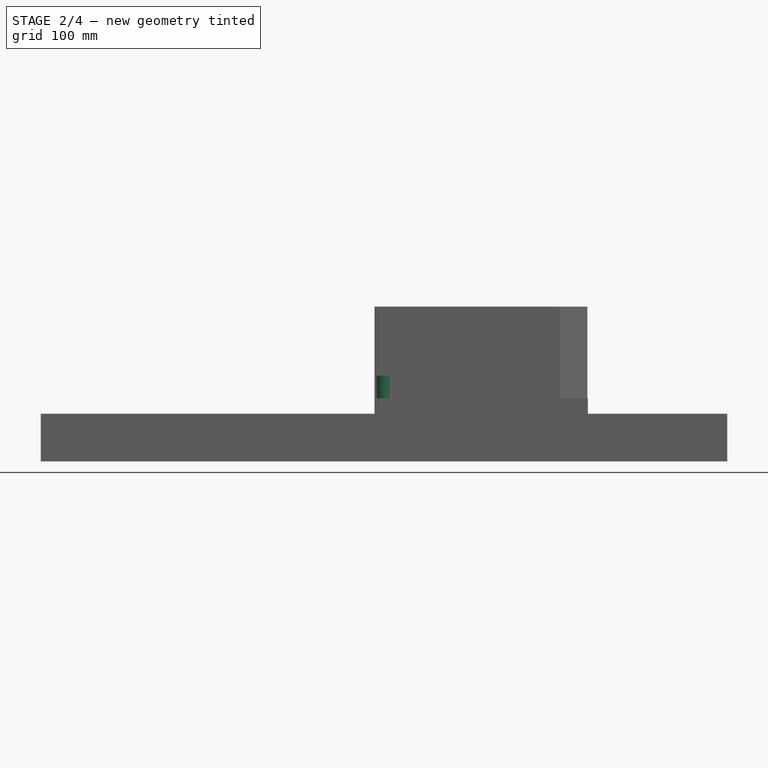
[diagram: stage 2 of 4 — front view after this stage's code; geometry added in this stage tinted green]
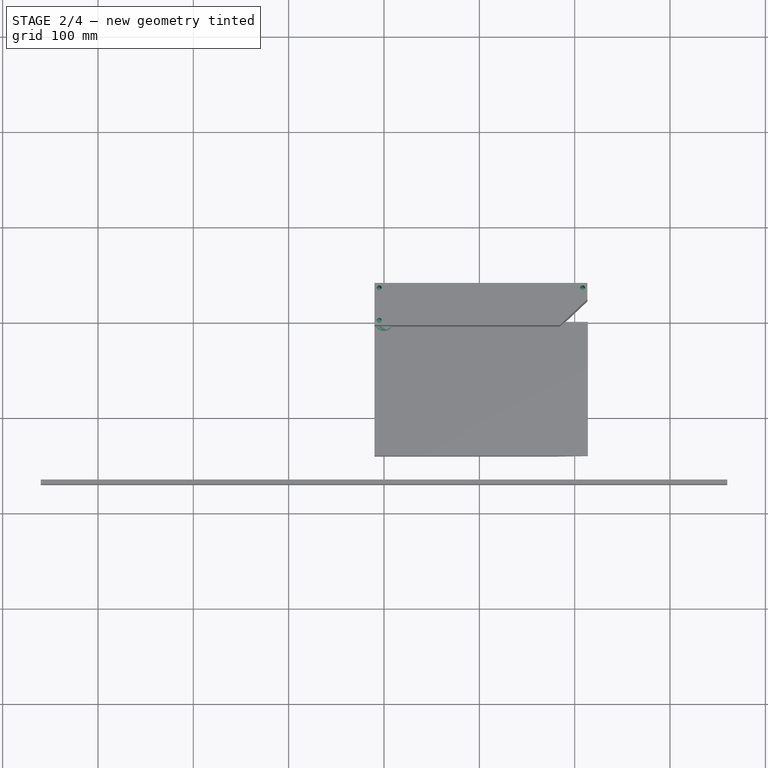
[diagram: stage 2 of 4 — top view after this stage's code; geometry added in this stage tinted green]
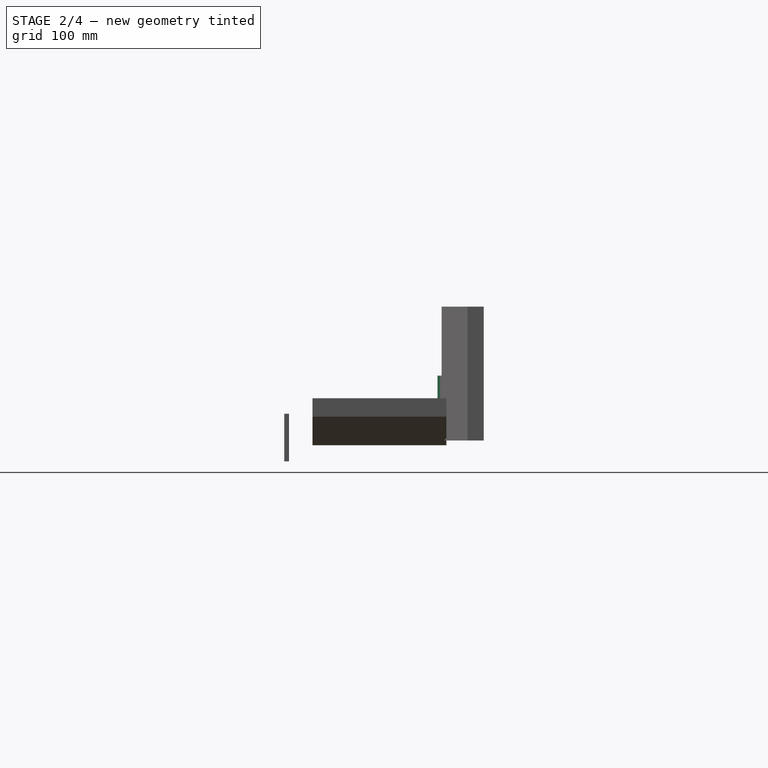
[diagram: stage 2 of 4 — right view after this stage's code; geometry added in this stage tinted green]
FEATURE [PartDesign::Body] Body001  label="Holder"
  Group = -> [Sketch003,Sketch004,Pad003,Pad004]
  Origin = -> Origin001
  Tip = -> Pad004
FEATURE [Sketcher::SketchObject] Sketch005
  MapMode = 5
  Support = -> [XY_Plane002]
  sketch-geometry (1):
    g0: Circle CenterX=0 CenterY=0 CenterZ=0 NormalX=0 NormalY=0 NormalZ=1 AngleXU=0 Radius=9.3
  constraints (2):
    c: Coincident(g0,g-1)
    c: Radius(g0) = 9.3
FEATURE [PartDesign::Pad] Pad005
  Length = 65
  Length2 = 100
  Profile = -> Sketch005
  Type = 0
FEATURE [Sketcher::SketchObject] Sketch011
  ExternalGeometry = -> [Sketch009,Sketch006,Sketch010]
  MapMode = 5
  Support = -> [XY_Plane003]
  expr: Constraints[15] = Box.MountWallThickness
  sketch-geometry (8):
    g0: LineSegment StartX=203.295 StartY=39.2272 StartZ=0 EndX=203.295 EndY=28.156 EndZ=0
    g1: LineSegment StartX=196.697 StartY=21.95 StartZ=0 EndX=182.55 EndY=21.95 EndZ=0
    g2: LineSegment StartX=182.55 StartY=21.95 StartZ=0 EndX=182.55 EndY=-1.4e-11 EndZ=0
    g3: LineSegment StartX=182.55 StartY=-1.4e-11 StartZ=0 EndX=0 EndY=-1.4e-11 EndZ=0
    g4: LineSegment StartX=0 StartY=-1.4e-11 StartZ=0 EndX=0 EndY=39.2272 EndZ=0
    g5: LineSegment StartX=196.697 StartY=21.95 StartZ=0 EndX=203.295 EndY=28.156 EndZ=0
    g6: LineSegment StartX=182.55 StartY=-1.4e-11 StartZ=0 EndX=0 EndY=0 EndZ=0
    g7: LineSegment StartX=0 StartY=39.2272 StartZ=0 EndX=203.295 EndY=39.2272 EndZ=0
  constraints (20):
    c: Horizontal(g1)
    c: Coincident(g1,g2)
    c: Coincident(g2,g3)
    c: Horizontal(g3)
    c: Coincident(g3,g4)
    c: Vertical(g0)
    c: Vertical(g2)
    c: PointOnObject(g2,g-5)
    c: PointOnObject(g4,g-2)
    c: DistanceX(g-5,g2) = 1
    c: PointOnObject(g-4,g1)
    c: PointOnObject(g0,g-3)
    c: Coincident(g1,g5)
    c: Coincident(g0,g5)
    c: Coincident(g3,g-1)
    c: Distance(g-6,g0) = 10
    c: Coincident(g6,g2)
    c: Coincident(g6,g-1)
    c: Coincident(g7,g4)
    c: Coincident(g7,g0)
FEATURE [PartDesign::Pocket] Pocket
  BaseFeature = -> Pad006
  Length = 134.4
  Length2 = 100
  Profile = -> Sketch011
  Reversed = true
  Type = 0
  expr: Length = 2 * Box.HolderDepth + Box.HolderGap
FEATURE [Sketcher::SketchObject] Sketch012
  ExternalGeometry = -> [Sketch010,Sketch011]
  MapMode = 5
  Support = -> [XY_Plane003]
  expr: Constraints[0] = Box.ScrewDiameter / 2
  sketch-geometry (9):
    g0: Circle CenterX=-5 CenterY=0 CenterZ=0 NormalX=0 NormalY=0 NormalZ=1 AngleXU=0 Radius=2.5
    g1: Circle CenterX=-5 CenterY=34.2272 CenterZ=0 NormalX=0 NormalY=0 NormalZ=1 AngleXU=0 Radius=2.5
    g2: LineSegment [constr] StartX=-10 StartY=39.2272 StartZ=0 EndX=0 EndY=-5 EndZ=0
    g3: LineSegment [constr] StartX=-10 StartY=-5 StartZ=0 EndX=0 EndY=39.2272 EndZ=0
    g4: GeomPoint X=-5 Y=17.1136 Z=0
    g5: LineSegment [constr] StartX=-5 StartY=34.2272 StartZ=0 EndX=-5 EndY=0 EndZ=0
    g6: Circle CenterX=208.295 CenterY=34.2272 CenterZ=0 NormalX=0 NormalY=0 NormalZ=1 AngleXU=0 Radius=2.5
    g7: LineSegment [constr] StartX=203.295 StartY=39.2272 StartZ=0 EndX=208.295 EndY=34.2272 EndZ=0
    g8: LineSegment [constr] StartX=208.295 StartY=34.2272 StartZ=0 EndX=213.295 EndY=39.2272 EndZ=0
  constraints (22):
    c: Radius(g1) = 2.5
    c: Equal(g1,g0)
    c: Coincident(g2,g-3)
    c: PointOnObject(g2,g-2)
    c: Coincident(g3,g-3)
    c: PointOnObject(g3,g-2)
    c: DistanceY(g3,g2) = 0
    c: DistanceY(g3,g2) = 0
    c: PointOnObject(g4,g2)
    c: PointOnObject(g4,g3)
    c: Symmetric(g0,g1,g4)
    c: Coincident(g5,g1)
    c: Coincident(g5,g0)
    c: Vertical(g5)
    c: DistanceY(g3,g0) = 5
    c: Equal(g1,g6)
    c: Coincident(g7,g-4)
    c: Coincident(g8,g-5)
    c: Coincident(g8,g6)
    c: Coincident(g7,g6)
    c: Equal(g8,g7)
    c: DistanceY(g6,g7) = 5
FEATURE [PartDesign::Pocket] Pocket001
  BaseFeature = -> Pocket
  Length = 5
  Length2 = 100
  Profile = -> Sketch012
  Reversed = true
  Type = 1
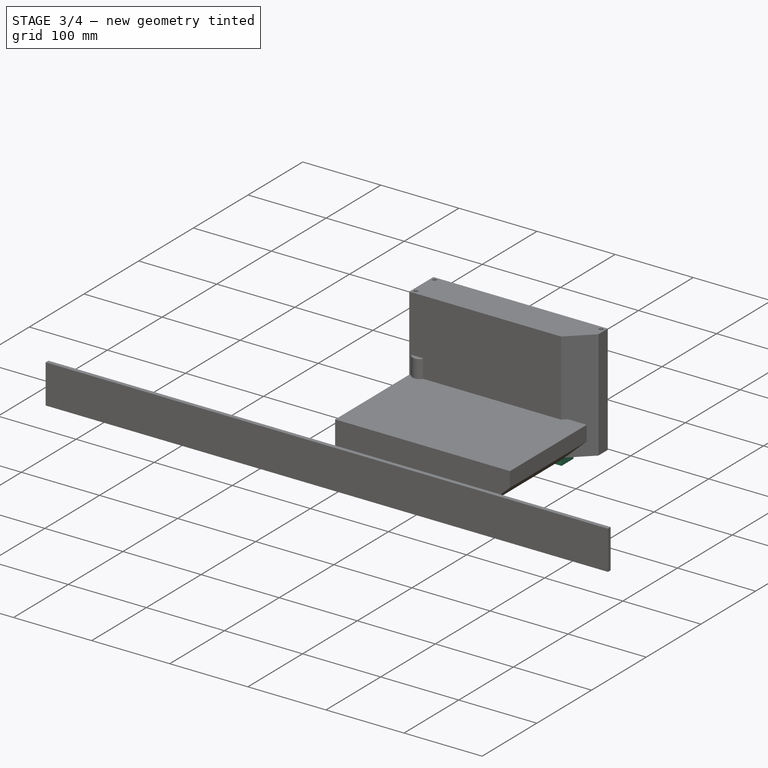
[diagram: stage 3 of 4 — iso view after this stage's code; geometry added in this stage tinted green]
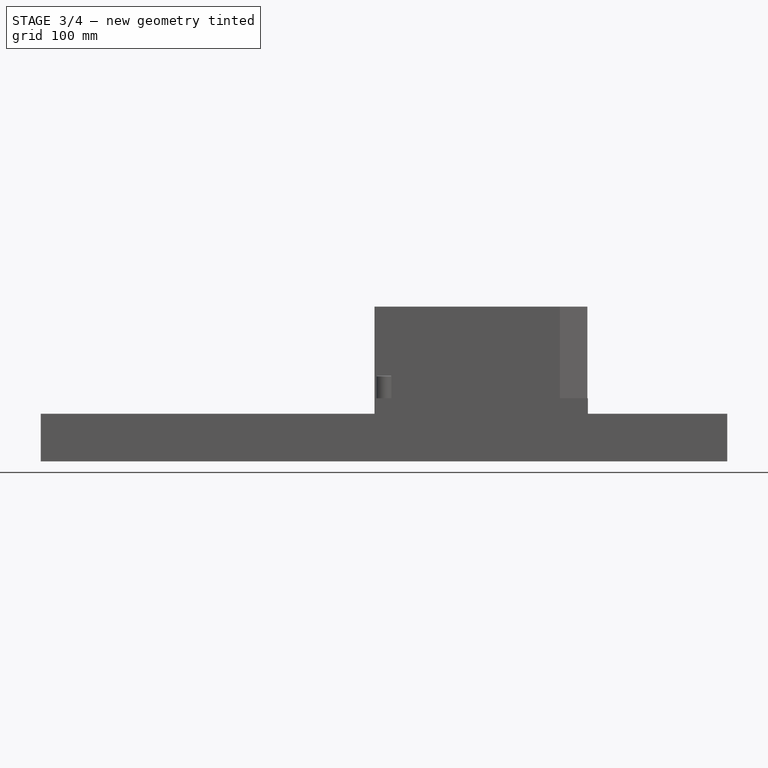
[diagram: stage 3 of 4 — front view after this stage's code; geometry added in this stage tinted green]
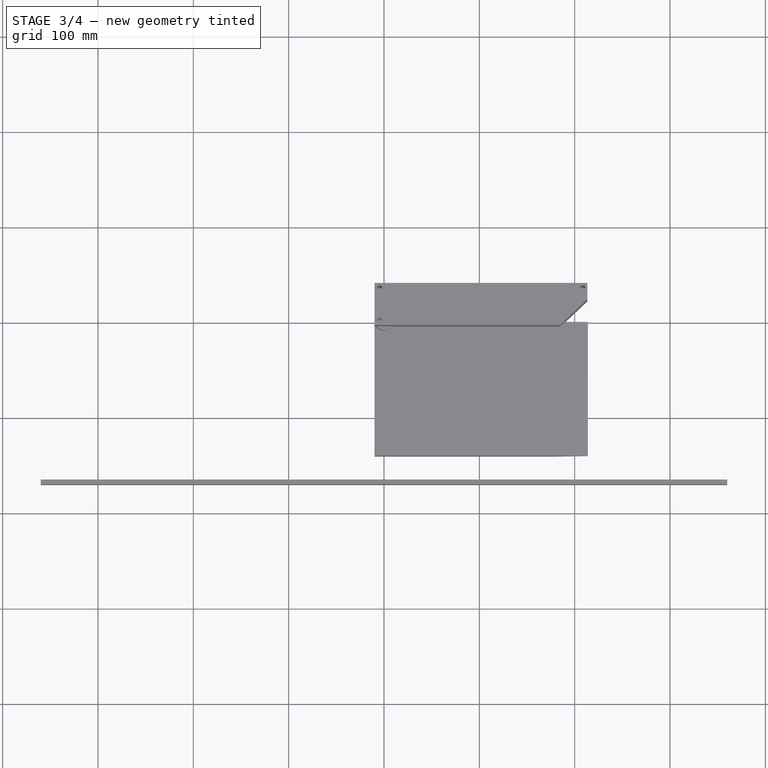
[diagram: stage 3 of 4 — top view after this stage's code; geometry added in this stage tinted green]
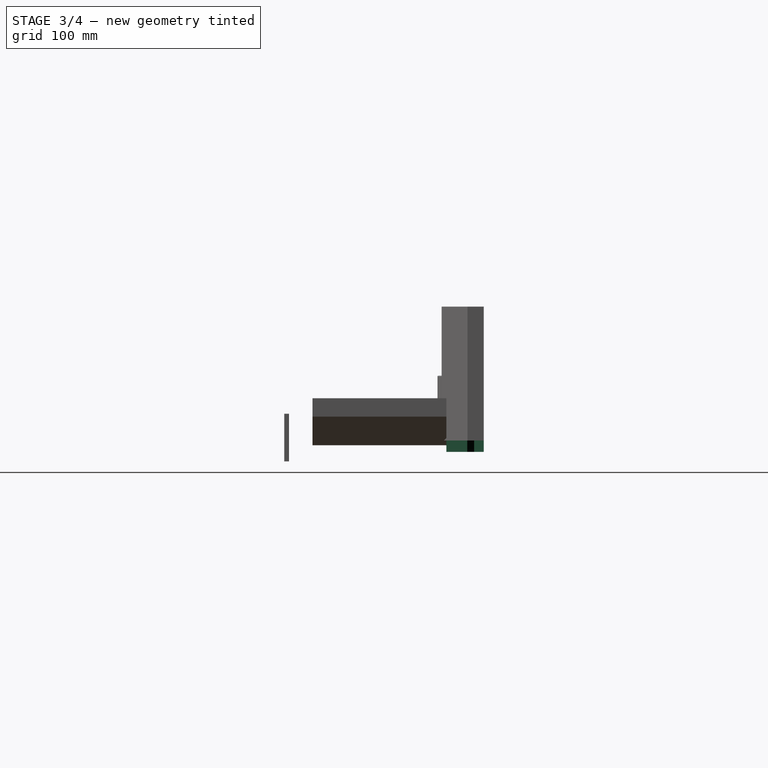
[diagram: stage 3 of 4 — right view after this stage's code; geometry added in this stage tinted green]
FEATURE [PartDesign::Body] Body
  Group = -> [Sketch,Pad,Sketch001,Pad001,Sketch002,Pad002]
  Origin = -> Origin
  Tip = -> Pad002
FEATURE [Sketcher::SketchObject] Sketch003
  MapMode = 5
  Support = -> [XY_Plane001]
  expr: Constraints[84] = Spreadsheet001.B2 / 2 + Spreadsheet001.B3
  expr: Constraints[212] = Spreadsheet001.B2 / 2 + Spreadsheet001.B3
  expr: Constraints[89] = Spreadsheet001.B2 / 2 + Spreadsheet001.B3
  expr: Constraints[85] = Spreadsheet001.B2 / 2 + Spreadsheet001.B3
  expr: Constraints[18] = Spreadsheet001.B2 / 2 + Spreadsheet001.B3
  expr: Constraints[0] = Spreadsheet001.B2 / 2
  expr: Constraints[83] = Spreadsheet001.B2 / 2 + Spreadsheet001.B3
  expr: Constraints[82] = Spreadsheet001.B2 + Spreadsheet001.B1
  expr: Constraints[19] = Spreadsheet001.B2 / 2 + Spreadsheet001.B3
  sketch-geometry (78):
    g0: Circle CenterX=10.975 CenterY=10.975 CenterZ=0 NormalX=0 NormalY=0 NormalZ=1 AngleXU=0 Radius=9.375
    g1: LineSegment [constr] StartX=0 StartY=0 StartZ=0 EndX=181.55 EndY=0 EndZ=0
    g2: LineSegment [constr] StartX=0 StartY=39.2272 StartZ=0 EndX=0 EndY=0 EndZ=0
    g3: Circle CenterX=20.95 CenterY=28.2522 CenterZ=0 NormalX=0 NormalY=0 NormalZ=1 AngleXU=0 Radius=9.375
    g4: Circle CenterX=30.925 CenterY=10.975 CenterZ=0 NormalX=0 NormalY=0 NormalZ=1 AngleXU=0 Radius=9.375
    g5: Circle CenterX=40.9 CenterY=28.2522 CenterZ=0 NormalX=0 NormalY=0 NormalZ=1 AngleXU=0 Radius=9.375
    g6: Circle CenterX=50.875 CenterY=10.975 CenterZ=0 NormalX=0 NormalY=0 NormalZ=1 AngleXU=0 Radius=9.375
    g7: Circle CenterX=60.85 CenterY=28.2522 CenterZ=0 NormalX=0 NormalY=0 NormalZ=1 AngleXU=0 Radius=9.375
    g8: Circle CenterX=70.825 CenterY=10.975 CenterZ=0 NormalX=0 NormalY=0 NormalZ=1 AngleXU=0 Radius=9.375
    g9: Circle CenterX=80.8 CenterY=28.2522 CenterZ=0 NormalX=0 NormalY=0 NormalZ=1 AngleXU=0 Radius=9.375
    g10: Circle CenterX=90.775 CenterY=10.975 CenterZ=0 NormalX=0 NormalY=0 NormalZ=1 AngleXU=0 Radius=9.375
    g11: Circle CenterX=100.75 CenterY=28.2522 CenterZ=0 NormalX=0 NormalY=0 NormalZ=1 AngleXU=0 Radius=9.375
    g12: Circle CenterX=110.725 CenterY=10.975 CenterZ=0 NormalX=0 NormalY=0 NormalZ=1 AngleXU=0 Radius=9.375
    g13: Circle CenterX=120.7 CenterY=28.2522 CenterZ=0 NormalX=0 NormalY=0 NormalZ=1 AngleXU=0 Radius=9.375
    g14: LineSegment [constr] StartX=131.675 StartY=39.2272 StartZ=0 EndX=131.675 EndY=21.95 EndZ=0
    g15: LineSegment [constr] StartX=131.675 StartY=21.95 StartZ=0 EndX=181.55 EndY=21.95 EndZ=0
    g16: LineSegment [constr] StartX=181.55 StartY=21.95 StartZ=0 EndX=181.55 EndY=0 EndZ=0
    g17: Circle CenterX=130.675 CenterY=10.975 CenterZ=0 NormalX=0 NormalY=0 NormalZ=1 AngleXU=0 Radius=9.375
    g18: Circle CenterX=150.625 CenterY=10.975 CenterZ=0 NormalX=0 NormalY=0 NormalZ=1 AngleXU=0 Radius=9.375
    g19: Circle CenterX=170.575 CenterY=10.975 CenterZ=0 NormalX=0 NormalY=0 NormalZ=1 AngleXU=0 Radius=9.375
    g20: LineSegment [constr] StartX=10.975 StartY=10.975 StartZ=0 EndX=20.95 EndY=28.2522 EndZ=0
    g21: LineSegment [constr] StartX=10.975 StartY=10.975 StartZ=0 EndX=30.925 EndY=10.975 EndZ=0
    g22: LineSegment [constr] StartX=30.925 StartY=10.975 StartZ=0 EndX=50.875 EndY=10.975 EndZ=0
    g23: LineSegment [constr] StartX=50.875 StartY=10.975 StartZ=0 EndX=70.825 EndY=10.975 EndZ=0
    g24: LineSegment [constr] StartX=70.825 StartY=10.975 StartZ=0 EndX=90.775 EndY=10.975 EndZ=0
    g25: LineSegment [constr] StartX=90.775 StartY=10.975 StartZ=0 EndX=110.725 EndY=10.975 EndZ=0
    g26: LineSegment [constr] StartX=110.725 StartY=10.975 StartZ=0 EndX=130.675 EndY=10.975 EndZ=0
    g27: LineSegment [constr] StartX=130.675 StartY=10.975 StartZ=0 EndX=150.625 EndY=10.975 EndZ=0
    g28: LineSegment [constr] StartX=150.625 StartY=10.975 StartZ=0 EndX=170.575 EndY=10.975 EndZ=0
    g29: LineSegment [constr] StartX=20.95 StartY=28.2522 StartZ=0 EndX=40.9 EndY=28.2522 EndZ=0
    g30: LineSegment [constr] StartX=40.9 StartY=28.2522 StartZ=0 EndX=60.85 EndY=28.2522 EndZ=0
    g31: LineSegment [constr] StartX=60.85 StartY=28.2522 StartZ=0 EndX=80.8 EndY=28.2522 EndZ=0
    g32: LineSegment [constr] StartX=80.8 StartY=28.2522 StartZ=0 EndX=100.75 EndY=28.2522 EndZ=0
    g33: LineSegment [constr] StartX=100.75 StartY=28.2522 StartZ=0 EndX=120.7 EndY=28.2522 EndZ=0
    g34: ArcOfCircle CenterX=50.875 CenterY=39.2272 CenterZ=0 NormalX=0 NormalY=0 NormalZ=1 AngleXU=0 Radius=4 StartAngle=3.14159 EndAngle=6.28319
    g35: ArcOfCircle CenterX=70.825 CenterY=39.2272 CenterZ=0 NormalX=0 NormalY=0 NormalZ=1 AngleXU=0 Radius=4 StartAngle=3.14159 EndAngle=6.28319
    g36: ArcOfCircle CenterX=90.775 CenterY=39.2272 CenterZ=0 NormalX=0 NormalY=0 NormalZ=1 AngleXU=0 Radius=4 StartAngle=3.14159 EndAngle=6.28319
    g37: ArcOfCircle CenterX=110.725 CenterY=39.2272 CenterZ=0 NormalX=0 NormalY=0 NormalZ=1 AngleXU=0 Radius=4 StartAngle=3.14159 EndAngle=6.28319
    g38: LineSegment [constr] StartX=0 StartY=39.2272 StartZ=0 EndX=131.675 EndY=39.2272 EndZ=0
    g39: LineSegment [constr] StartX=114.725 StartY=39.2272 StartZ=0 EndX=131.681 EndY=39.2284 EndZ=0
    g40: LineSegment [constr] StartX=30.925 StartY=39.2272 StartZ=0 EndX=30.925 EndY=10.975 EndZ=0
    g41: LineSegment [constr] StartX=50.875 StartY=39.2272 StartZ=0 EndX=50.875 EndY=10.975 EndZ=0
    g42: LineSegment [constr] StartX=70.825 StartY=39.2272 StartZ=0 EndX=70.825 EndY=10.975 EndZ=0
    g43: LineSegment [constr] StartX=90.775 StartY=39.2272 StartZ=0 EndX=90.775 EndY=10.975 EndZ=0
    g44: LineSegment [constr] StartX=110.725 StartY=39.2272 StartZ=0 EndX=110.725 EndY=10.975 EndZ=0
    g45: ArcOfCircle CenterX=30.925 CenterY=39.2272 CenterZ=0 NormalX=0 NormalY=0 NormalZ=1 AngleXU=0 Radius=4 StartAngle=3.14159 EndAngle=6.28319
    g46: ArcOfCircle CenterX=20.95 CenterY=0 CenterZ=0 NormalX=0 NormalY=0 NormalZ=1 AngleXU=0 Radius=4 StartAngle=0 EndAngle=3.14159
    g47: ArcOfCircle CenterX=40.9 CenterY=0 CenterZ=0 NormalX=0 NormalY=0 NormalZ=1 AngleXU=0 Radius=4 StartAngle=0 EndAngle=3.14159
    g48: ArcOfCircle CenterX=60.85 CenterY=0 CenterZ=0 NormalX=0 NormalY=0 NormalZ=1 AngleXU=0 Radius=4 StartAngle=0 EndAngle=3.14159
    g49: ArcOfCircle CenterX=80.8 CenterY=0 CenterZ=0 NormalX=0 NormalY=0 NormalZ=1 AngleXU=0 Radius=4 StartAngle=0 EndAngle=3.14159
    g50: ArcOfCircle CenterX=100.75 CenterY=0 CenterZ=0 NormalX=0 NormalY=0 NormalZ=1 AngleXU=0 Radius=4 StartAngle=0 EndAngle=3.14159
    g51: ArcOfCircle CenterX=120.7 CenterY=0 CenterZ=0 NormalX=0 NormalY=0 NormalZ=1 AngleXU=0 Radius=4 StartAngle=0 EndAngle=3.14159
    g52: ArcOfCircle CenterX=140.65 CenterY=0 CenterZ=0 NormalX=0 NormalY=0 NormalZ=1 AngleXU=0 Radius=4 StartAngle=0 EndAngle=3.14159
    g53: ArcOfCircle CenterX=160.6 CenterY=0 CenterZ=0 NormalX=0 NormalY=0 NormalZ=1 AngleXU=0 Radius=4 StartAngle=0 EndAngle=3.14159
    g54: LineSegment [constr] StartX=20.95 StartY=28.2522 StartZ=0 EndX=20.95 EndY=0 EndZ=0
    g55: LineSegment [constr] StartX=40.9 StartY=28.2522 StartZ=0 EndX=40.9 EndY=0 EndZ=0
    g56: LineSegment [constr] StartX=181.55 StartY=21.95 StartZ=0 EndX=181.55 EndY=0 EndZ=0
    g57: LineSegment StartX=181.55 StartY=0 StartZ=0 EndX=181.55 EndY=21.95 EndZ=0
    g58: LineSegment StartX=181.55 StartY=21.95 StartZ=0 EndX=138.831 EndY=21.95 EndZ=0
    g59: LineSegment StartX=131.675 StartY=29.1065 StartZ=0 EndX=131.675 EndY=39.2272 EndZ=0
    g60: LineSegment StartX=0 StartY=22.8232 StartZ=0 EndX=0 EndY=0 EndZ=0
    g61: LineSegment StartX=164.6 StartY=0 StartZ=0 EndX=181.55 EndY=0 EndZ=0
    g62: LineSegment StartX=156.6 StartY=-1e-12 StartZ=0 EndX=144.65 EndY=0 EndZ=0
    g63: LineSegment StartX=136.65 StartY=-1e-12 StartZ=0 EndX=124.7 EndY=0 EndZ=0
    g64: LineSegment StartX=116.7 StartY=-1e-12 StartZ=0 EndX=104.75 EndY=0 EndZ=0
    g65: LineSegment StartX=96.75 StartY=-1e-12 StartZ=0 EndX=84.8 EndY=0 EndZ=0
    g66: LineSegment StartX=76.8 StartY=-1e-12 StartZ=0 EndX=64.85 EndY=0 EndZ=0
    g67: LineSegment StartX=56.85 StartY=-1e-12 StartZ=0 EndX=44.9 EndY=0 EndZ=0
    g68: LineSegment StartX=16.95 StartY=-1e-12 StartZ=0 EndX=0 EndY=0 EndZ=0
    g69: LineSegment StartX=36.9 StartY=-1e-12 StartZ=0 EndX=24.95 EndY=0 EndZ=0
    g70: LineSegment StartX=16.404 StartY=39.2272 StartZ=0 EndX=26.925 EndY=39.2272 EndZ=0
    g71: LineSegment StartX=34.925 StartY=39.2272 StartZ=0 EndX=46.875 EndY=39.2272 EndZ=0
    g72: LineSegment StartX=54.875 StartY=39.2272 StartZ=0 EndX=66.825 EndY=39.2272 EndZ=0
    g73: LineSegment StartX=74.825 StartY=39.2272 StartZ=0 EndX=86.775 EndY=39.2272 EndZ=0
    g74: LineSegment StartX=94.775 StartY=39.2272 StartZ=0 EndX=106.725 EndY=39.2272 EndZ=0
    g75: LineSegment StartX=114.725 StartY=39.2272 StartZ=0 EndX=131.675 EndY=39.2272 EndZ=0
    g76: LineSegment StartX=131.675 StartY=29.1065 StartZ=0 EndX=138.831 EndY=21.95 EndZ=0
    g77: LineSegment StartX=0 StartY=22.8232 StartZ=0 EndX=16.404 EndY=39.2272 EndZ=0
  constraints (217):
    c: Radius(g0) = 9.375
    c: Coincident(g2,g1)
    c: Horizontal(g1)
    c: Vertical(g2)
    c: Coincident(g1,g-1)
    c: Equal(g0,g3) = 18.75
    c: Vertical(g14)
    c: Coincident(g14,g15)
    c: Horizontal(g15)
    c: Coincident(g15,g16)
    c: Vertical(g16)
    c: Coincident(g1,g16)
    c: Coincident(g20,g3)
    c: Coincident(g20,g0)
    c: Coincident(g21,g0)
    c: Coincident(g21,g4)
    c: Equal(g20,g21)
    c: Horizontal(g21)
    c: Distance(g0,g1) = 10.975
    c: Distance(g0,g2) = 10.975
    c: Coincident(g22,g4)
    c: Coincident(g22,g6)
    c: Horizontal(g22)
    c: Coincident(g22,g23)
    c: Coincident(g23,g8)
    c: Coincident(g23,g24)
    c: Coincident(g24,g10)
    c: Coincident(g24,g25)
    c: Horizontal(g25)
    c: Coincident(g25,g26)
    c: Coincident(g26,g17)
    c: Coincident(g26,g27)
    c: Coincident(g27,g28)
    c: Coincident(g28,g19)
    c: Coincident(g18,g27)
    c: Coincident(g25,g12)
    c: Horizontal(g23)
    c: Horizontal(g24)
    c: Horizontal(g26)
    c: Horizontal(g27)
    c: Horizontal(g28)
    c: Equal(g28,g27)
    c: Equal(g27,g26)
    c: Equal(g26,g25)
    c: Equal(g25,g24)
    c: Equal(g24,g23)
    c: Equal(g23,g22)
    c: Equal(g22,g21)
    c: Angle(g21,g20) = 1.0472
    c: Coincident(g29,g3)
    c: Coincident(g29,g5)
    c: Horizontal(g29)
    c: Coincident(g29,g30)
    c: Coincident(g30,g7)
    c: Coincident(g30,g31)
    c: Coincident(g31,g9)
    c: Coincident(g31,g32)
    c: Coincident(g32,g11)
    c: Coincident(g32,g33)
    c: Coincident(g33,g13)
    c: Horizontal(g33)
    c: Horizontal(g32)
    c: Horizontal(g31)
    c: Horizontal(g30)
    c: Equal(g29,g30)
    c: Equal(g30,g31)
    c: Equal(g31,g20)
    c: Equal(g20,g32)
    c: Equal(g32,g33)
    c: Equal(g3,g4)
    c: Equal(g4,g5)
    c: Equal(g5,g6)
    c: Equal(g6,g7)
    c: Equal(g7,g8)
    c: Equal(g8,g9)
    c: Equal(g9,g10)
    c: Equal(g10,g11)
    c: Equal(g11,g12)
    c: Equal(g12,g13)
    c: Equal(g13,g17)
    c: Equal(g17,g18)
    c: Equal(g18,g19)
    c: Distance(g21) = 19.95
    c: Distance(g13,g14) = 10.975
    c: Distance(g19,g15) = 10.975
    c: Distance(g19,g16) = 10.975
    c: Coincident(g38,g2)
    c: Coincident(g38,g14)
    c: Horizontal(g38)
    c: Distance(g3,g38) = 10.975
    c: PointOnObject(g45,g38)
    c: PointOnObject(g34,g38)
    c: PointOnObject(g34,g38)
    c: PointOnObject(g35,g38)
    c: PointOnObject(g35,g38)
    c: PointOnObject(g36,g38)
    c: PointOnObject(g36,g38)
    c: PointOnObject(g37,g38)
    c: PointOnObject(g37,g38)
    c: Coincident(g39,g37)
    c: PointOnObject(g34,g38)
    c: PointOnObject(g35,g38)
    c: PointOnObject(g36,g38)
    c: PointOnObject(g37,g38)
    c: Coincident(g40,g4)
    c: Vertical(g40)
    c: Vertical(g41)
    c: Vertical(g42)
    c: Coincident(g42,g35)
    c: Vertical(g43)
    c: Coincident(g43,g36)
    c: Vertical(g44)
    c: Coincident(g44,g37)
    c: Coincident(g44,g12)
    c: Coincident(g43,g10)
    c: Coincident(g8,g42)
    c: Coincident(g6,g41)
    c: Coincident(g41,g34)
    c: Coincident(g45,g40)
    c: PointOnObject(g45,g38)
    c: Equal(g45,g34)
    c: Radius(g45) = 4
    c: Equal(g34,g35)
    c: Equal(g35,g36)
    c: Equal(g36,g37)
    c: PointOnObject(g46,g1)
    c: PointOnObject(g46,g1)
    c: PointOnObject(g46,g1)
    c: Equal(g46,g45)
    c: PointOnObject(g47,g1)
    c: PointOnObject(g47,g1)
    c: PointOnObject(g47,g1)
    c: PointOnObject(g48,g1)
    c: PointOnObject(g48,g1)
    c: PointOnObject(g48,g1)
    c: PointOnObject(g49,g1)
    c: PointOnObject(g49,g1)
    c: PointOnObject(g49,g1)
    c: PointOnObject(g50,g1)
    c: PointOnObject(g50,g1)
    c: PointOnObject(g50,g1)
    c: PointOnObject(g51,g1)
    c: PointOnObject(g51,g1)
    c: PointOnObject(g51,g1)
    c: PointOnObject(g52,g1)
    c: PointOnObject(g52,g1)
    c: PointOnObject(g52,g1)
    c: PointOnObject(g53,g1)
    c: PointOnObject(g53,g1)
    c: PointOnObject(g53,g1)
    c: Equal(g46,g47)
    c: Equal(g47,g48)
    c: Equal(g48,g49)
    c: Equal(g49,g50)
    c: Equal(g50,g51)
    c: Equal(g51,g52)
    c: Equal(g52,g53)
    c: Coincident(g54,g3)
    c: Coincident(g54,g46)
    c: Vertical(g54)
    c: Coincident(g55,g5)
    c: Coincident(g55,g47)
    c: Vertical(g55)
    c: Coincident(g56,g1)
    c: Coincident(g56,g15)
    c: Coincident(g57,g58)
    c: Vertical(g60)
    c: Coincident(g57,g15)
    c: Coincident(g59,g14)
    c: Coincident(g61,g53)
    c: Coincident(g62,g53)
    c: Coincident(g62,g52)
    c: Coincident(g52,g63)
    c: Coincident(g64,g51)
    c: Coincident(g65,g50)
    c: Coincident(g66,g49)
    c: Coincident(g67,g48)
    c: Coincident(g67,g47)
    c: Coincident(g66,g48)
    c: Coincident(g65,g49)
    c: Coincident(g64,g50)
    c: Coincident(g68,g60)
    c: Coincident(g68,g46)
    c: Coincident(g51,g63)
    c: Coincident(g61,g1)
    c: Coincident(g69,g46)
    c: Coincident(g69,g47)
    c: Equal(g69,g67)
    c: Equal(g67,g66)
    c: Equal(g66,g65)
    c: Equal(g65,g64)
    c: Equal(g64,g63)
    c: Equal(g63,g62)
    c: Coincident(g60,g-1)
    c: Coincident(g75,g14)
    c: Coincident(g75,g37)
    c: Coincident(g37,g74)
    c: Coincident(g36,g74)
    c: Coincident(g36,g73)
    c: Coincident(g73,g35)
    c: Coincident(g35,g72)
    c: Coincident(g72,g34)
    c: Coincident(g34,g71)
    c: Coincident(g71,g45)
    c: Coincident(g45,g70)
    c: Coincident(g58,g76)
    c: Coincident(g59,g76)
    c: Angle(g76) = -0.785398
    c: PointOnObject(g58,g15)
    c: PointOnObject(g59,g14)
    c: Equal(g76,g59)
    c: Angle(g77) = 0.785398
    c: Distance(g3,g77) = 10.975
    c: Coincident(g60,g77)
    c: Coincident(g70,g77)
    c: PointOnObject(g70,g38)
    c: PointOnObject(g40,g38)
FEATURE [Spreadsheet::Sheet] Spreadsheet001  label="Akku"
  cells = A1=InnerPadding; B1=1.2; C1=LidDiameter; D1==B2 - 4; A2=ExtraDiameter; B2=18.75; A3=OuterPadding; B3=1.6000000000000001; A4=#BmsLength; B4(BmsLength)=50
FEATURE [PartDesign::Pad] Pad003
  Length = 15
  Length2 = 100
  Profile = -> Sketch003
  Reversed = true
  Type = 0
FEATURE [Part::FeaturePython] Fillet01  # WARN: FeaturePython — macro-defined, semantics opaque (R4)
FEATURE [Part::FeaturePython] Fillet02  # WARN: FeaturePython — macro-defined, semantics opaque (R4)
FEATURE [Part::FeaturePython] Fillet03  # WARN: FeaturePython — macro-defined, semantics opaque (R4)
FEATURE [PartDesign::Fillet] Fillet
  Base = -> Pad005 [Edge3]
  BaseFeature = -> Pad005
  Radius = 1
FEATURE [PartDesign::Fillet] Fillet001
  Base = -> Fillet [Edge3]
  BaseFeature = -> Fillet
  Radius = 1
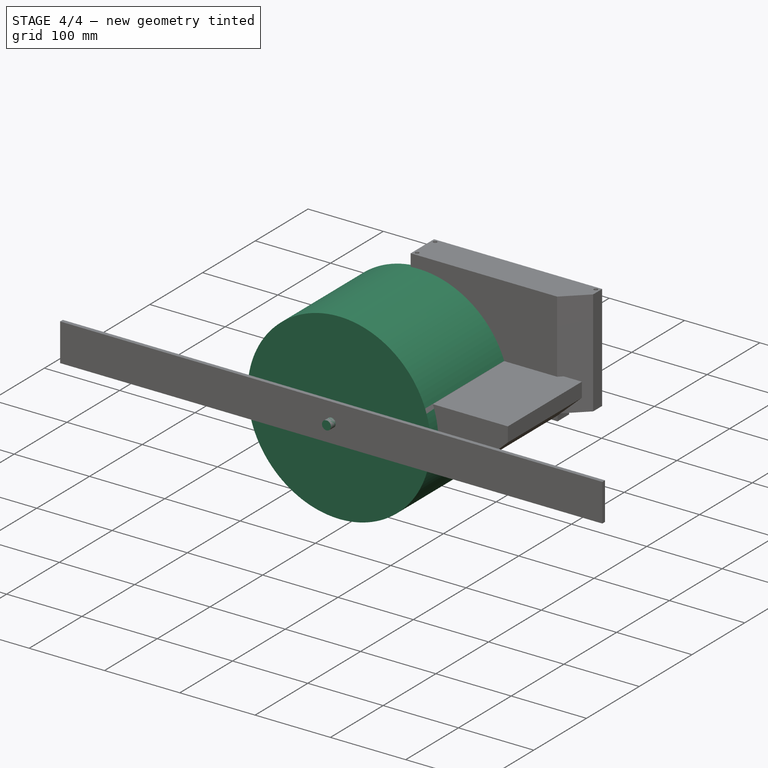
[diagram: stage 4 of 4 — iso view after this stage's code; geometry added in this stage tinted green]
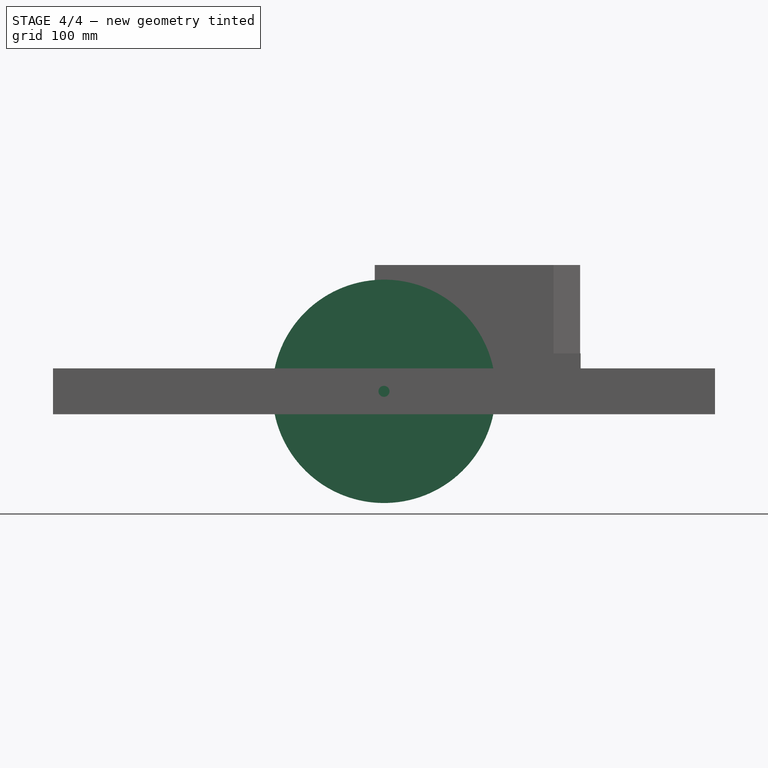
[diagram: stage 4 of 4 — front view after this stage's code; geometry added in this stage tinted green]
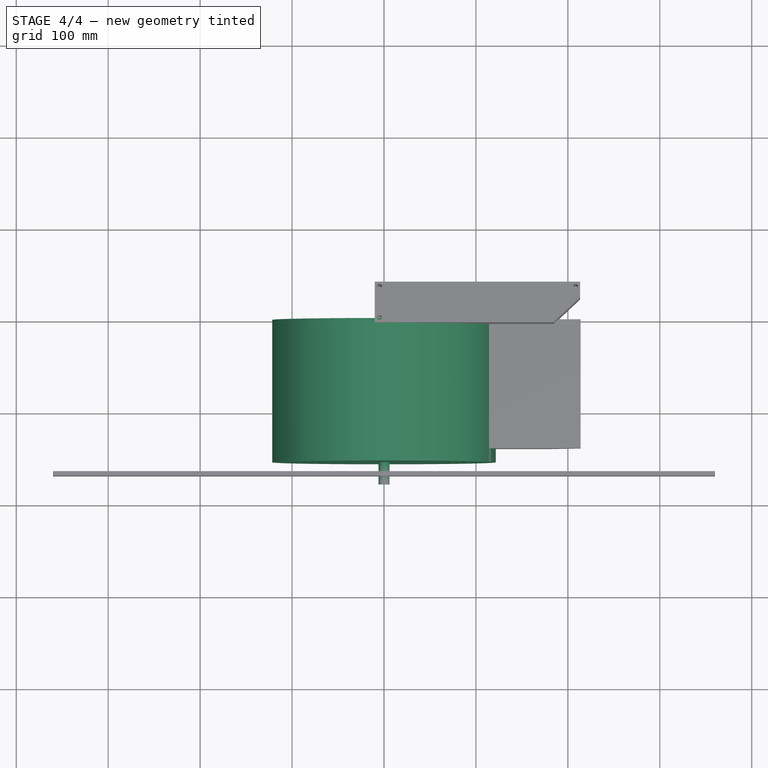
[diagram: stage 4 of 4 — top view after this stage's code; geometry added in this stage tinted green]
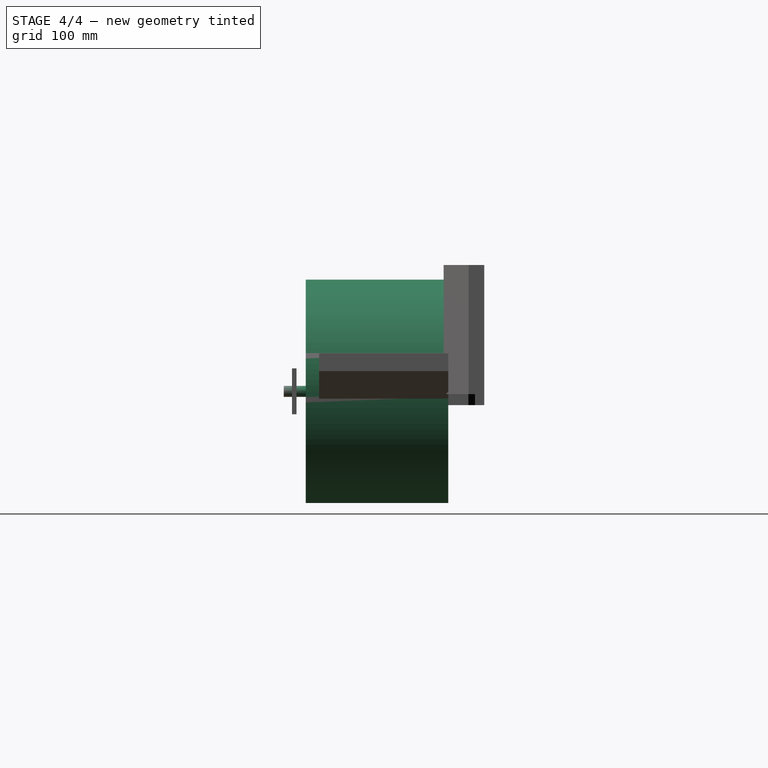
[diagram: stage 4 of 4 — right view after this stage's code; geometry added in this stage tinted green]
FEATURE [Sketcher::SketchObject] Sketch
  MapMode = 5
  Placement = pos=(0,0,0) rot=(1,0,0;1.5708rad)
  Support = -> [XZ_Plane]
  expr: Constraints[1] = Pyörä.B1 / 2
  sketch-geometry (1):
    g0: Circle CenterX=0 CenterY=0 CenterZ=0 NormalX=0 NormalY=0 NormalZ=1 AngleXU=0 Radius=121.5
  constraints (2):
    c: Coincident(g0,g-1)
    c: Radius(g0) = 121.5
FEATURE [Spreadsheet::Sheet] Spreadsheet  label="Pyörä"
  cells = A1=Halkaisija; B1=243; A2=Leveys; B2=155; A3=AkseliD; B3=12; A4=AkseliUlos; B4=24
FEATURE [PartDesign::Pad] Pad
  Length = 155
  Length2 = 100
  Placement = pos=(0,0,0) rot=(1,0,0;1.5708rad)
  Profile = -> Sketch
  Type = 0
  expr: Length = Spreadsheet.B2
FEATURE [Sketcher::SketchObject] Sketch001
  MapMode = 5
  Placement = pos=(0,0,0) rot=(1,0,0;1.5708rad)
  Support = -> [XZ_Plane]
  expr: Constraints[1] = Spreadsheet.B3 / 2
  sketch-geometry (1):
    g0: Circle CenterX=0 CenterY=0 CenterZ=0 NormalX=0 NormalY=0 NormalZ=1 AngleXU=0 Radius=6
  constraints (2):
    c: Coincident(g0,g-1)
    c: Radius(g0) = 6
FEATURE [PartDesign::Pad] Pad001
  BaseFeature = -> Pad
  Length = 24
  Length2 = 100
  Placement = pos=(0,0,0) rot=(1,0,0;1.5708rad)
  Profile = -> Sketch001
  Reversed = true
  Type = 0
  expr: Length = Spreadsheet.B4
FEATURE [Sketcher::SketchObject] Sketch002
  MapMode = 5
  Placement = pos=(0,-155,-1.6e-11) rot=(1,0,0;1.5708rad)
  Support = -> [Pad001]
  expr: Constraints[1] = Spreadsheet.B3 / 2
  sketch-geometry (1):
    g0: Circle CenterX=0 CenterY=0 CenterZ=0 NormalX=0 NormalY=0 NormalZ=1 AngleXU=0 Radius=6
  constraints (2):
    c: Coincident(g0,g-1)
    c: Radius(g0) = 6
FEATURE [PartDesign::Pad] Pad002
  BaseFeature = -> Pad001
  Length = 24
  Length2 = 100
  Placement = pos=(0,0,0) rot=(1,0,0;1.5708rad)
  Profile = -> Sketch002
  Type = 0
  expr: Length = Spreadsheet.B4
FEATURE [Sketcher::SketchObject] Sketch004
  ExternalGeometry = -> [Pad003]
  MapMode = 5
  Support = -> [XY_Plane001]
  expr: Constraints[14] = Spreadsheet001.D1 / 2
  sketch-geometry (23):
    g0: Circle CenterX=10.975 CenterY=10.975 CenterZ=0 NormalX=0 NormalY=0 NormalZ=1 AngleXU=0 Radius=7.375
    g1: Circle CenterX=20.95 CenterY=28.2522 CenterZ=0 NormalX=0 NormalY=0 NormalZ=1 AngleXU=0 Radius=7.375
    g2: Circle CenterX=30.925 CenterY=10.975 CenterZ=0 NormalX=0 NormalY=0 NormalZ=1 AngleXU=0 Radius=7.375
    g3: Circle CenterX=40.9 CenterY=28.2522 CenterZ=0 NormalX=0 NormalY=0 NormalZ=1 AngleXU=0 Radius=7.375
    g4: Circle CenterX=50.875 CenterY=10.975 CenterZ=0 NormalX=0 NormalY=0 NormalZ=1 AngleXU=0 Radius=7.375
    g5: Circle CenterX=60.85 CenterY=28.2522 CenterZ=0 NormalX=0 NormalY=0 NormalZ=1 AngleXU=0 Radius=7.375
    g6: Circle CenterX=70.825 CenterY=10.975 CenterZ=0 NormalX=0 NormalY=0 NormalZ=1 AngleXU=0 Radius=7.375
    g7: Circle CenterX=80.8 CenterY=28.2522 CenterZ=0 NormalX=0 NormalY=0 NormalZ=1 AngleXU=0 Radius=7.375
    g8: Circle CenterX=90.775 CenterY=10.975 CenterZ=0 NormalX=0 NormalY=0 NormalZ=1 AngleXU=0 Radius=7.375
    g9: Circle CenterX=100.75 CenterY=28.2522 CenterZ=0 NormalX=0 NormalY=0 NormalZ=1 AngleXU=0 Radius=7.375
    g10: Circle CenterX=110.725 CenterY=10.975 CenterZ=0 NormalX=0 NormalY=0 NormalZ=1 AngleXU=0 Radius=7.375
    g11: Circle CenterX=120.7 CenterY=28.2522 CenterZ=0 NormalX=0 NormalY=0 NormalZ=1 AngleXU=0 Radius=7.375
    g12: Circle CenterX=130.675 CenterY=10.975 CenterZ=0 NormalX=0 NormalY=0 NormalZ=1 AngleXU=0 Radius=7.375
    g13: Circle CenterX=150.625 CenterY=10.975 CenterZ=0 NormalX=0 NormalY=0 NormalZ=1 AngleXU=0 Radius=7.375
    g14: Circle CenterX=170.575 CenterY=10.975 CenterZ=0 NormalX=0 NormalY=0 NormalZ=1 AngleXU=0 Radius=7.375
    g15: LineSegment StartX=0 StartY=0 StartZ=0 EndX=0 EndY=22.8232 EndZ=0
    g16: LineSegment StartX=16.404 StartY=39.2272 StartZ=0 EndX=131.675 EndY=39.2272 EndZ=0
    g17: LineSegment StartX=131.675 StartY=39.2272 StartZ=0 EndX=131.675 EndY=29.1065 EndZ=0
    g18: LineSegment StartX=138.831 StartY=21.95 StartZ=0 EndX=181.55 EndY=21.95 EndZ=0
    g19: LineSegment StartX=181.55 StartY=21.95 StartZ=0 EndX=181.55 EndY=0 EndZ=0
    g20: LineSegment StartX=181.55 StartY=0 StartZ=0 EndX=0 EndY=0 EndZ=0
    g21: LineSegment StartX=0 StartY=22.8232 StartZ=0 EndX=16.404 EndY=39.2272 EndZ=0
    g22: LineSegment StartX=131.675 StartY=29.1065 StartZ=0 EndX=138.831 EndY=21.95 EndZ=0
  constraints (34):
    c: Equal(g0,g1)
    c: Equal(g1,g2)
    c: Equal(g2,g3)
    c: Equal(g3,g4)
    c: Equal(g4,g5)
    c: Equal(g5,g6)
    c: Equal(g6,g7)
    c: Equal(g7,g8)
    c: Equal(g8,g9)
    c: Equal(g9,g10)
    c: Equal(g10,g11)
    c: Equal(g11,g12)
    c: Equal(g12,g13)
    c: Equal(g13,g14)
    c: Radius(g0) = 7.375
    c: Coincident(g-1,g15)
    c: Coincident(g16,g17)
    c: Coincident(g18,g19)
    c: Vertical(g19)
    c: Coincident(g19,g20)
    c: Coincident(g20,g15)
    c: Horizontal(g20)
    c: Coincident(g15,g21)
    c: Coincident(g16,g21)
    c: Coincident(g15,g-3)
    c: Coincident(g16,g-3)
    c: Horizontal(g18)
    c: Vertical(g17)
    c: Coincident(g17,g22)
    c: Coincident(g18,g22)
    c: Horizontal(g16)
    c: DistanceX(g18) = 181.55
    c: Coincident(g17,g-4)
    c: Coincident(g-4,g18)
FEATURE [PartDesign::Pad] Pad004
  BaseFeature = -> Pad003
  Length = 0.6
  Length2 = 100
  Profile = -> Sketch004
  Type = 0
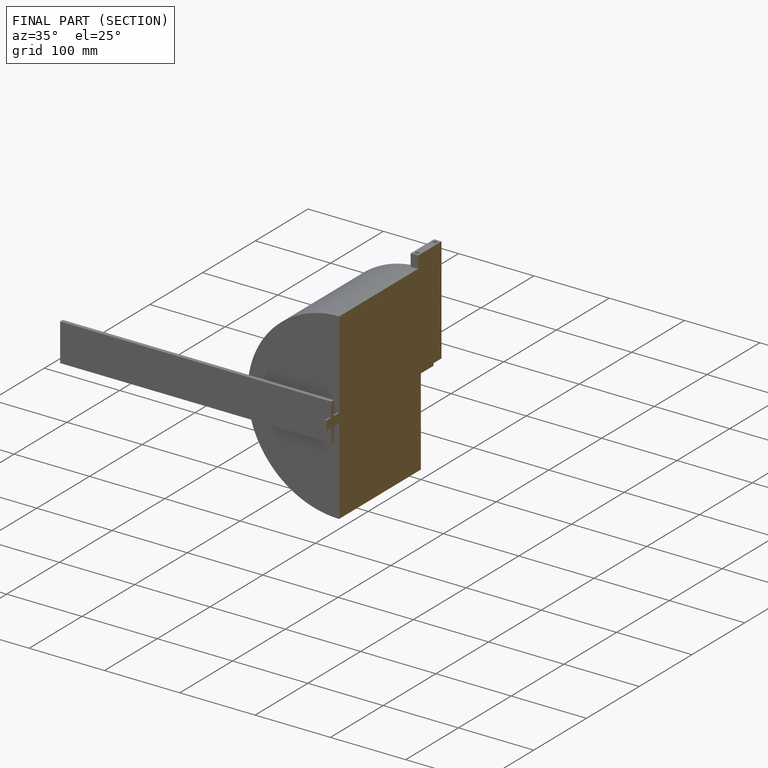
[diagram: finished part — half-section view (interior)]
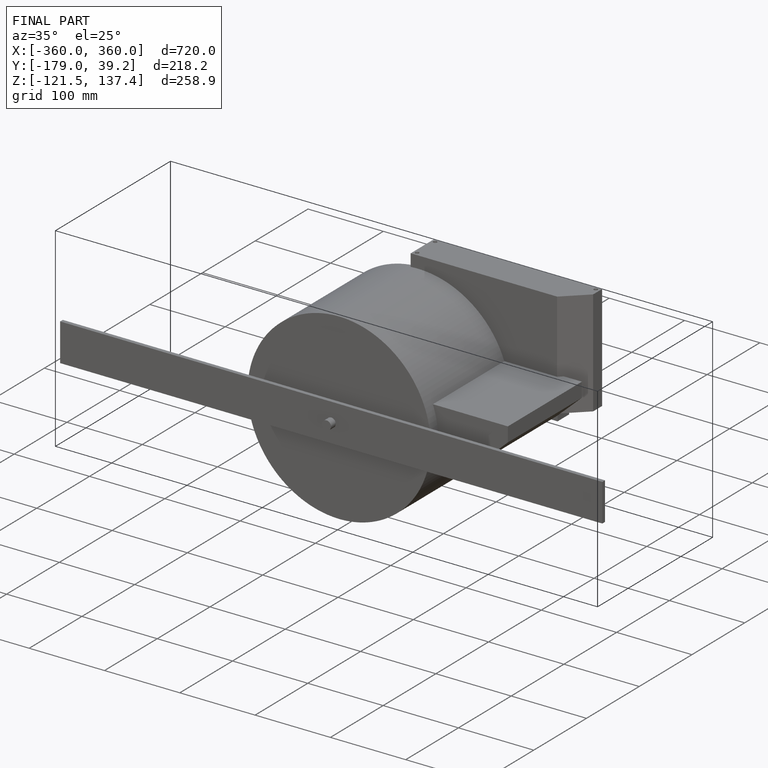
[diagram: finished part — iso view with bounding-box wireframe]
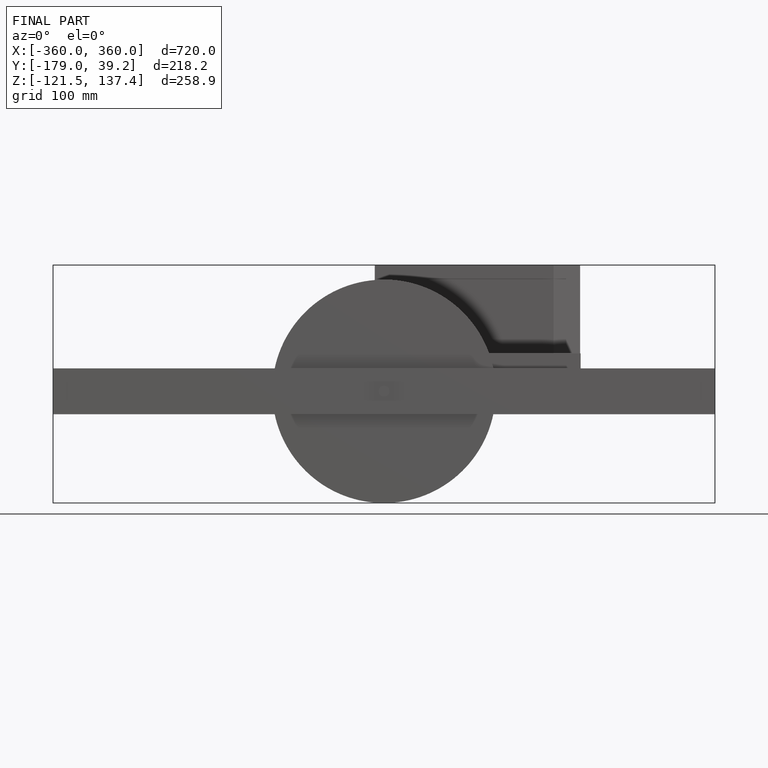
[diagram: finished part — front view with bounding-box wireframe]
